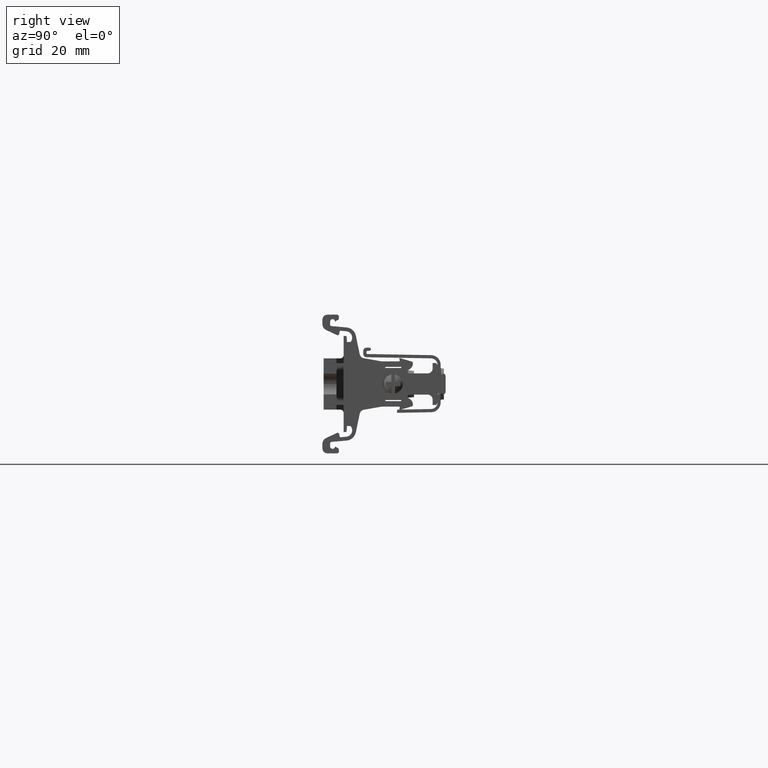
[diagram: clean part render]
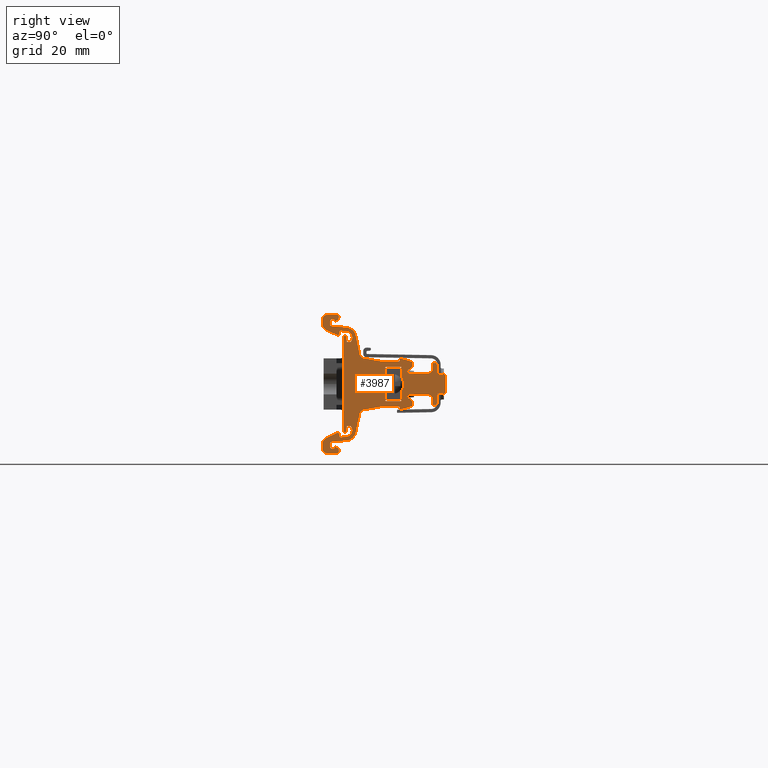
[diagram: same view with one face highlighted and labeled with its STEP entity id]
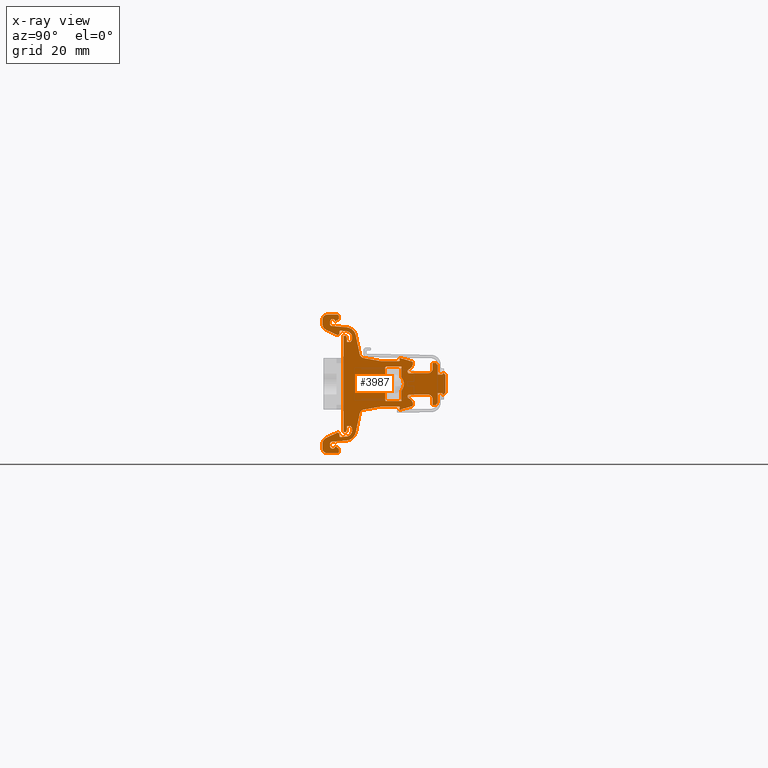
[diagram: x-ray of the same camera — body ghosted, the highlighted face saturated]
A machine part, right view. The second image highlights one B-rep face of the part: STEP entity #3987.
The next image is the same camera in x-ray: the body ghosted, the highlighted face saturated — about 0% of this face is hidden behind the body in this view.
In plain terms, the highlighted planar face has unit normal (-1, 0, -0).
Its self-contained STEP definition (entity closure, byte-faithful):
#72 = VERTEX_POINT ( 'NONE', #3906 ) ;
#77 = VERTEX_POINT ( 'NONE', #32385 ) ;
#83 = CARTESIAN_POINT ( 'NONE',  ( 45.04730230417580117, 39.76328441857295104, 43.87217171682194561 ) ) ;
#111 = CARTESIAN_POINT ( 'NONE',  ( 45.04730230417590064, 55.87540409741220060, 45.11625012411799673 ) ) ;
#144 = ORIENTED_EDGE ( 'NONE', *, *, #31632, .T. ) ;
#202 = DIRECTION ( 'NONE',  ( 1.000000000000000000, 6.080468963914279164E-22, 3.511192837615215549E-15 ) ) ;
#218 = AXIS2_PLACEMENT_3D ( 'NONE', #27114, #30067, #8019 ) ;
#284 = EDGE_CURVE ( 'NONE', #5001, #39572, #1288, .T. ) ;
#307 = DIRECTION ( 'NONE',  ( 0.0000000000000000000, -1.000000000000000000, 0.0000000000000000000 ) ) ;
#308 = CARTESIAN_POINT ( 'NONE',  ( 45.04730230417609960, 64.41902670048010293, 34.76864998369349280 ) ) ;
#409 = EDGE_CURVE ( 'NONE', #16024, #14393, #4758, .T. ) ;
#419 = DIRECTION ( 'NONE',  ( -1.000000000000000000, 6.938893295860650037E-15, -3.511194039250415127E-15 ) ) ;
#516 = CARTESIAN_POINT ( 'NONE',  ( 45.04730230417600012, 65.03482648293329760, 44.61224998368954431 ) ) ;
#634 = CIRCLE ( 'NONE', #37148, 1.008000000000022656 ) ;
#702 = CARTESIAN_POINT ( 'NONE',  ( 45.04730230417609960, 65.03482648293329760, 16.47537229411330273 ) ) ;
#789 = CARTESIAN_POINT ( 'NONE',  ( 45.04730230417580117, 43.05277200151720507, 54.66530018249689959 ) ) ;
#827 = VECTOR ( 'NONE', #21131, 1000.000000000000000 ) ;
#884 = CARTESIAN_POINT ( 'NONE',  ( 45.04730230417609960, 70.18882648293229920, 33.25664998369444447 ) ) ;
#896 = EDGE_CURVE ( 'NONE', #19869, #31832, #5738, .T. ) ;
#946 = VECTOR ( 'NONE', #7396, 1000.000000000000114 ) ;
#953 = ORIENTED_EDGE ( 'NONE', *, *, #3562, .T. ) ;
#961 = CARTESIAN_POINT ( 'NONE',  ( 45.04730230417600012, 61.14930040515500309, 45.41624998369039901 ) ) ;
#989 = ORIENTED_EDGE ( 'NONE', *, *, #6848, .T. ) ;
#1048 = CIRCLE ( 'NONE', #15569, 0.7589999999999957891 ) ;
#1083 = LINE ( 'NONE', #37484, #25640 ) ;
#1114 = CARTESIAN_POINT ( 'NONE',  ( 45.04730230417590064, 47.79345559758269957, 53.09064989785720456 ) ) ;
#1241 = CARTESIAN_POINT ( 'NONE',  ( 45.04730230417590064, 44.64504681959524390, 23.63694516486119923 ) ) ;
#1288 = CIRCLE ( 'NONE', #2455, 0.2999999999999461431 ) ;
#1345 = VERTEX_POINT ( 'NONE', #38035 ) ;
#1392 = CIRCLE ( 'NONE', #10869, 2.000000000000050182 ) ;
#1415 = CARTESIAN_POINT ( 'NONE',  ( 45.04730230417590064, 42.49563694983474704, 17.63144197736650298 ) ) ;
#1440 = EDGE_CURVE ( 'NONE', #39572, #34805, #35829, .T. ) ;
#1520 = CARTESIAN_POINT ( 'NONE',  ( 45.04730230417590064, 40.21966716099024808, 20.03755198441054830 ) ) ;
#1605 = VECTOR ( 'NONE', #35385, 1000.000000000000000 ) ;
#1658 = DIRECTION ( 'NONE',  ( 0.0000000000000000000, -1.000000000000000000, 0.0000000000000000000 ) ) ;
#1713 = ORIENTED_EDGE ( 'NONE', *, *, #10395, .T. ) ;
#1803 = ORIENTED_EDGE ( 'NONE', *, *, #5934, .T. ) ;
#1893 = CIRCLE ( 'NONE', #35974, 0.5000000000001605382 ) ;
#1927 = EDGE_CURVE ( 'NONE', #2204, #29893, #16666, .T. ) ;
#1975 = VECTOR ( 'NONE', #14420, 999.9999999999998863 ) ;
#1992 = CARTESIAN_POINT ( 'NONE',  ( 45.04730230417600012, 64.41902670048010293, 41.38664998368980008 ) ) ;
#2033 = ORIENTED_EDGE ( 'NONE', *, *, #30717, .T. ) ;
#2034 = EDGE_CURVE ( 'NONE', #31565, #25525, #2169, .T. ) ;
#2035 = AXIS2_PLACEMENT_3D ( 'NONE', #24827, #28299, #37618 ) ;
#2070 = DIRECTION ( 'NONE',  ( -1.000000000000000000, 1.387778780781444098E-14, -3.511194208363125255E-15 ) ) ;
#2131 = VERTEX_POINT ( 'NONE', #7195 ) ;
#2169 = LINE ( 'NONE', #6233, #40311 ) ;
#2204 = VERTEX_POINT ( 'NONE', #10563 ) ;
#2283 = DIRECTION ( 'NONE',  ( 1.387778780781442836E-14, 0.9999999999999850120, -1.731738780152976998E-07 ) ) ;
#2321 = ORIENTED_EDGE ( 'NONE', *, *, #18195, .F. ) ;
#2338 = LINE ( 'NONE', #3156, #8347 ) ;
#2356 = ORIENTED_EDGE ( 'NONE', *, *, #31636, .T. ) ;
#2381 = ORIENTED_EDGE ( 'NONE', *, *, #5960, .F. ) ;
#2420 = LINE ( 'NONE', #30863, #29000 ) ;
#2425 = ORIENTED_EDGE ( 'NONE', *, *, #11388, .T. ) ;
#2455 = AXIS2_PLACEMENT_3D ( 'NONE', #14419, #17615, #1658 ) ;
#2475 = ORIENTED_EDGE ( 'NONE', *, *, #6997, .T. ) ;
#2502 = CARTESIAN_POINT ( 'NONE',  ( 45.04730230417609960, 73.21282648293259854, 43.93826644650415147 ) ) ;
#2561 = LINE ( 'NONE', #14892, #8036 ) ;
#2578 = EDGE_CURVE ( 'NONE', #3090, #32341, #3076, .T. ) ;
#2637 = LINE ( 'NONE', #39216, #26681 ) ;
#2719 = EDGE_CURVE ( 'NONE', #34805, #33626, #14626, .T. ) ;
#2767 = VECTOR ( 'NONE', #32361, 1000.000000000000000 ) ;
#2780 = DIRECTION ( 'NONE',  ( -1.000000000000000000, 1.387778841585714128E-14, -3.511193175840455551E-15 ) ) ;
#2824 = EDGE_CURVE ( 'NONE', #4074, #37788, #36225, .T. ) ;
#2871 = DIRECTION ( 'NONE',  ( -1.698165312667435330E-15, -0.08716743514127640868, 0.9961936750707121035 ) ) ;
#2885 = EDGE_CURVE ( 'NONE', #16339, #41564, #6577, .T. ) ;
#2917 = ORIENTED_EDGE ( 'NONE', *, *, #32453, .T. ) ;
#2922 = LINE ( 'NONE', #789, #11942 ) ;
#2929 = LINE ( 'NONE', #17040, #38091 ) ;
#2943 = EDGE_CURVE ( 'NONE', #40101, #13014, #21605, .T. ) ;
#2971 = CARTESIAN_POINT ( 'NONE',  ( 45.04730230417609960, 71.70082648293229965, 31.54304998368995427 ) ) ;
#3053 = AXIS2_PLACEMENT_3D ( 'NONE', #18747, #2780, #41641 ) ;
#3057 = EDGE_CURVE ( 'NONE', #34031, #31977, #38735, .T. ) ;
#3076 = CIRCLE ( 'NONE', #34715, 3.308999999999034713 ) ;
#3078 = CIRCLE ( 'NONE', #24823, 3.308999999999034713 ) ;
#3090 = VERTEX_POINT ( 'NONE', #20060 ) ;
#3103 = CARTESIAN_POINT ( 'NONE',  ( 45.04730230417600012, 49.02563120575550215, 28.94034795427729989 ) ) ;
#3129 = CARTESIAN_POINT ( 'NONE',  ( 45.04730230417590064, 39.76324211793895103, 18.62470185362465003 ) ) ;
#3156 = CARTESIAN_POINT ( 'NONE',  ( 45.04730230417609960, 75.74178047623560417, 40.55278486981335107 ) ) ;
#3167 = LINE ( 'NONE', #17087, #30765 ) ;
#3261 = ORIENTED_EDGE ( 'NONE', *, *, #22048, .F. ) ;
#3293 = VERTEX_POINT ( 'NONE', #15503 ) ;
#3322 = CARTESIAN_POINT ( 'NONE',  ( 45.04730230417580117, 44.64504681959524390, 52.51835480252209720 ) ) ;
#3335 = ORIENTED_EDGE ( 'NONE', *, *, #35175, .F. ) ;
#3338 = AXIS2_PLACEMENT_3D ( 'NONE', #30884, #4939, #15003 ) ;
#3368 = DIRECTION ( 'NONE',  ( 1.000000000000000000, 0.0000000000000000000, 3.511194208363125255E-15 ) ) ;
#3384 = CARTESIAN_POINT ( 'NONE',  ( 45.04730230417600012, 65.03482648293329760, 51.17200985974320560 ) ) ;
#3410 = CIRCLE ( 'NONE', #18917, 1.511999999999999567 ) ;
#3441 = DIRECTION ( 'NONE',  ( 7.909228227635313371E-15, 0.9961947123350202160, 0.08715557994613090664 ) ) ;
#3562 = EDGE_CURVE ( 'NONE', #37958, #29603, #33132, .T. ) ;
#3578 = ORIENTED_EDGE ( 'NONE', *, *, #896, .T. ) ;
#3608 = DIRECTION ( 'NONE',  ( 6.938893903907648052E-15, 0.9999999999999850120, -1.731738814847554779E-07 ) ) ;
#3664 = PLANE ( 'NONE',  #17814 ) ;
#3755 = CARTESIAN_POINT ( 'NONE',  ( 45.04730230417600012, 56.81263063100299604, 36.03872277032984783 ) ) ;
#3794 = CARTESIAN_POINT ( 'NONE',  ( 45.04730230417590064, 49.02563120575550215, 47.21495201310600009 ) ) ;
#3906 = CARTESIAN_POINT ( 'NONE',  ( 45.04730230417609960, 65.53882648293330249, 31.54304998369335422 ) ) ;
#3918 = LINE ( 'NONE', #33671, #39109 ) ;
#3938 = LINE ( 'NONE', #37997, #39616 ) ;
#3960 = CARTESIAN_POINT ( 'NONE',  ( 45.04730230417609960, 74.98278047623560383, 40.55278486981335107 ) ) ;
#3962 = VECTOR ( 'NONE', #17595, 1000.000000000000000 ) ;
#3969 = CARTESIAN_POINT ( 'NONE',  ( 45.04730230417609960, 73.21189314966319728, 32.21547733648735345 ) ) ;
#3987 = ADVANCED_FACE ( 'NONE', ( #9512, #36627 ), #3664, .F. ) ;
#4015 = CARTESIAN_POINT ( 'NONE',  ( 45.04730230417609960, 70.18882648293229920, 42.89864998368875604 ) ) ;
#4031 = VERTEX_POINT ( 'NONE', #1415 ) ;
#4074 = VERTEX_POINT ( 'NONE', #30544 ) ;
#4102 = LINE ( 'NONE', #40329, #37266 ) ;
#4155 = ORIENTED_EDGE ( 'NONE', *, *, #22663, .T. ) ;
#4170 = LINE ( 'NONE', #24873, #14207 ) ;
#4174 = CARTESIAN_POINT ( 'NONE',  ( 45.04730230417619907, 73.21282648293269801, 14.80179621560654013 ) ) ;
#4257 = CIRCLE ( 'NONE', #29477, 3.199999923352062847 ) ;
#4289 = EDGE_CURVE ( 'NONE', #19770, #22263, #34055, .T. ) ;
#4315 = CARTESIAN_POINT ( 'NONE',  ( 45.04730230417609960, 72.81491734236399793, 44.60171648553019708 ) ) ;
#4357 = EDGE_CURVE ( 'NONE', #14393, #37958, #29011, .T. ) ;
#4381 = DIRECTION ( 'NONE',  ( 4.036443564285347951E-15, -0.1736481776669389354, -0.9848077530122064660 ) ) ;
#4502 = DIRECTION ( 'NONE',  ( -4.461775849259800428E-15, 1.731736892445320024E-07, 0.9999999999999850120 ) ) ;
#4580 = CARTESIAN_POINT ( 'NONE',  ( 45.04730230417600012, 61.56727615041429402, 46.12424998368979345 ) ) ;
#4623 = CARTESIAN_POINT ( 'NONE',  ( 45.04730230417600012, 56.41882648293279345, 40.42466532237265397 ) ) ;
#4664 = CARTESIAN_POINT ( 'NONE',  ( 45.04730230417590064, 38.52068015480980279, 21.25285254921984901 ) ) ;
#4667 = CARTESIAN_POINT ( 'NONE',  ( 45.04730230417609960, 71.70082648293229965, 44.61224998369330308 ) ) ;
#4758 = CIRCLE ( 'NONE', #14796, 1.500000000000001332 ) ;
#4767 = ORIENTED_EDGE ( 'NONE', *, *, #28975, .F. ) ;
#4780 = CARTESIAN_POINT ( 'NONE',  ( 45.04730230417600012, 62.65701656017640175, 43.40264998369015359 ) ) ;
#4823 = VERTEX_POINT ( 'NONE', #23302 ) ;
#4849 = CARTESIAN_POINT ( 'NONE',  ( 45.04730230417590064, 44.81935797948735001, 21.64455574019099870 ) ) ;
#4861 = EDGE_CURVE ( 'NONE', #38075, #34630, #9413, .T. ) ;
#4872 = ORIENTED_EDGE ( 'NONE', *, *, #25360, .F. ) ;
#4882 = CARTESIAN_POINT ( 'NONE',  ( 45.04730230417580117, 44.97751323073705265, 51.17200985974320560 ) ) ;
#4916 = LINE ( 'NONE', #14060, #25473 ) ;
#4939 = DIRECTION ( 'NONE',  ( 1.000000000000000000, -1.376764663471030128E-14, 3.511194208363125255E-15 ) ) ;
#5001 = VERTEX_POINT ( 'NONE', #15664 ) ;
#5006 = VERTEX_POINT ( 'NONE', #41243 ) ;
#5012 = CARTESIAN_POINT ( 'NONE',  ( 45.04730230417580117, 40.52224083797164411, 57.53060022804039875 ) ) ;
#5019 = CARTESIAN_POINT ( 'NONE',  ( 45.04730230417600012, 61.34208246428669753, 30.10474022585210108 ) ) ;
#5028 = EDGE_CURVE ( 'NONE', #38601, #9790, #21957, .T. ) ;
#5226 = DIRECTION ( 'NONE',  ( 1.000000000000000000, -1.387778780781444098E-14, 3.511194208363125255E-15 ) ) ;
#5247 = LINE ( 'NONE', #702, #2767 ) ;
#5271 = EDGE_CURVE ( 'NONE', #9790, #29657, #25462, .T. ) ;
#5281 = VECTOR ( 'NONE', #16603, 1000.000000000000000 ) ;
#5287 = VERTEX_POINT ( 'NONE', #34563 ) ;
#5292 = EDGE_CURVE ( 'NONE', #77, #5001, #37039, .T. ) ;
#5340 = EDGE_CURVE ( 'NONE', #5769, #6302, #28432, .T. ) ;
#5346 = DIRECTION ( 'NONE',  ( 3.060780312257524908E-28, 1.938238520643950141E-14, 1.000000000000000000 ) ) ;
#5365 = DIRECTION ( 'NONE',  ( 8.673617587638691173E-15, 0.9999999999999850120, -1.731738806453589827E-07 ) ) ;
#5456 = EDGE_CURVE ( 'NONE', #23628, #27235, #1392, .T. ) ;
#5497 = VECTOR ( 'NONE', #38761, 1000.000000000000000 ) ;
#5546 = CIRCLE ( 'NONE', #33226, 0.5000000000000004441 ) ;
#5548 = DIRECTION ( 'NONE',  ( 1.353109665513949657E-15, -0.2508007137987739998, -0.9680387399056019637 ) ) ;
#5573 = CIRCLE ( 'NONE', #9085, 1.999201665742356138 ) ;
#5579 = DIRECTION ( 'NONE',  ( 8.595110051843501022E-15, 0.8660322215516831346, -0.4999881910948060781 ) ) ;
#5601 = EDGE_CURVE ( 'NONE', #10667, #7670, #20420, .T. ) ;
#5635 = DIRECTION ( 'NONE',  ( -1.000000000000000000, 6.883823317368130559E-15, -3.511194208363125255E-15 ) ) ;
#5738 = LINE ( 'NONE', #12674, #16742 ) ;
#5769 = VERTEX_POINT ( 'NONE', #36713 ) ;
#5861 = CARTESIAN_POINT ( 'NONE',  ( 45.04730230417580117, 44.64504681959524390, 52.51835480252209720 ) ) ;
#5927 = CARTESIAN_POINT ( 'NONE',  ( 45.04730230417590064, 48.88003733662709749, 47.85295847066389996 ) ) ;
#5934 = EDGE_CURVE ( 'NONE', #35826, #40916, #35500, .T. ) ;
#5960 = EDGE_CURVE ( 'NONE', #7670, #33259, #8851, .T. ) ;
#6016 = EDGE_CURVE ( 'NONE', #14758, #39751, #33962, .T. ) ;
#6125 = DIRECTION ( 'NONE',  ( 6.938893903906565734E-15, 0.9999999999999851230, 1.731738814847284523E-07 ) ) ;
#6196 = CARTESIAN_POINT ( 'NONE',  ( 45.04730230417600012, 63.91902670048020241, 42.08361953261960053 ) ) ;
#6233 = CARTESIAN_POINT ( 'NONE',  ( 45.04730230417590064, 43.96882648293765072, 31.57865108636465123 ) ) ;
#6244 = CARTESIAN_POINT ( 'NONE',  ( 45.04730230417580117, 38.86598570617709925, 58.17992767326989423 ) ) ;
#6302 = VERTEX_POINT ( 'NONE', #7751 ) ;
#6393 = DIRECTION ( 'NONE',  ( -9.142168123262904179E-15, -1.000000000000000000, 0.0000000000000000000 ) ) ;
#6404 = ORIENTED_EDGE ( 'NONE', *, *, #23462, .F. ) ;
#6413 = VECTOR ( 'NONE', #9934, 1000.000000000000000 ) ;
#6548 = CARTESIAN_POINT ( 'NONE',  ( 45.04730230417600012, 48.88003733662709749, 28.30234149671985122 ) ) ;
#6577 = LINE ( 'NONE', #31057, #16583 ) ;
#6645 = CARTESIAN_POINT ( 'NONE',  ( 45.04730230417590064, 43.96882648293760099, 29.07865108636485019 ) ) ;
#6680 = CARTESIAN_POINT ( 'NONE',  ( 45.04730230417580117, 42.60328566554649399, 53.69303677530010077 ) ) ;
#6694 = AXIS2_PLACEMENT_3D ( 'NONE', #4015, #7373, #9914 ) ;
#6708 = ORIENTED_EDGE ( 'NONE', *, *, #4289, .F. ) ;
#6750 = CIRCLE ( 'NONE', #11672, 1.500000000000056843 ) ;
#6753 = AXIS2_PLACEMENT_3D ( 'NONE', #11546, #5226, #24291 ) ;
#6806 = CARTESIAN_POINT ( 'NONE',  ( 45.04730230417590064, 43.05277200151720507, 21.48999978488635421 ) ) ;
#6848 = EDGE_CURVE ( 'NONE', #29893, #25943, #33148, .T. ) ;
#6962 = DIRECTION ( 'NONE',  ( 1.387778780781000127E-14, 0.9999999999999851230, -1.731738780152424309E-07 ) ) ;
#6997 = EDGE_CURVE ( 'NONE', #35700, #32002, #5546, .T. ) ;
#7102 = ORIENTED_EDGE ( 'NONE', *, *, #36645, .T. ) ;
#7111 = DIRECTION ( 'NONE',  ( -3.511194208363125255E-15, 9.328066904212699892E-30, 1.000000000000000000 ) ) ;
#7168 = VECTOR ( 'NONE', #15735, 1000.000000000000000 ) ;
#7195 = CARTESIAN_POINT ( 'NONE',  ( 45.04730230417609960, 74.83098047623559523, 41.01244998369160299 ) ) ;
#7210 = LINE ( 'NONE', #31833, #8195 ) ;
#7292 = VECTOR ( 'NONE', #36193, 1000.000000000000000 ) ;
#7346 = LINE ( 'NONE', #21651, #10863 ) ;
#7366 = CARTESIAN_POINT ( 'NONE',  ( 45.04730230417609960, 75.30354029322739962, 41.24067595116520124 ) ) ;
#7373 = DIRECTION ( 'NONE',  ( 1.000000000000000000, -9.178431089824380761E-15, 3.511194208363125255E-15 ) ) ;
#7396 = DIRECTION ( 'NONE',  ( -3.511226112384350598E-15, -4.039727375448119747E-06, 0.9999999999918401938 ) ) ;
#7401 = CARTESIAN_POINT ( 'NONE',  ( 45.04730230417590064, 44.64504681959524390, 23.63694516486119923 ) ) ;
#7519 = EDGE_LOOP ( 'NONE', ( #12470, #20387, #10269, #25307, #10031, #32095, #12767, #39806, #29212, #22135, #10354, #10115, #35832, #39204, #15727 ) ) ;
#7554 = ORIENTED_EDGE ( 'NONE', *, *, #35659, .F. ) ;
#7640 = CARTESIAN_POINT ( 'NONE',  ( 45.04730230417609960, 75.03338047623560669, 41.36664998369160173 ) ) ;
#7645 = LINE ( 'NONE', #11995, #22722 ) ;
#7670 = VERTEX_POINT ( 'NONE', #8414 ) ;
#7716 = VERTEX_POINT ( 'NONE', #31291 ) ;
#7751 = CARTESIAN_POINT ( 'NONE',  ( 45.04730230417580117, 44.87820380573344892, 52.99986615940360224 ) ) ;
#7886 = AXIS2_PLACEMENT_3D ( 'NONE', #3960, #19503, #32297 ) ;
#7893 = AXIS2_PLACEMENT_3D ( 'NONE', #7401, #31237, #26440 ) ;
#7926 = DIRECTION ( 'NONE',  ( -1.521712686171329979E-27, -9.631644151525070094E-14, 1.000000000000000000 ) ) ;
#7980 = VERTEX_POINT ( 'NONE', #28351 ) ;
#7997 = LINE ( 'NONE', #40609, #41190 ) ;
#8003 = DIRECTION ( 'NONE',  ( 8.938535444814240931E-15, 1.000000000000000000, 7.310028659936728794E-30 ) ) ;
#8019 = DIRECTION ( 'NONE',  ( -1.387778780781405917E-14, -1.000000000000000000, 0.0000000000000000000 ) ) ;
#8036 = VECTOR ( 'NONE', #34400, 1000.000000000000000 ) ;
#8046 = DIRECTION ( 'NONE',  ( -1.000000000000000000, 6.080473711468669767E-22, -3.511195579110825518E-15 ) ) ;
#8150 = CARTESIAN_POINT ( 'NONE',  ( 45.04730230417580117, 42.49563694983474704, 58.52385799001679345 ) ) ;
#8170 = VERTEX_POINT ( 'NONE', #21581 ) ;
#8178 = DIRECTION ( 'NONE',  ( 1.579514997436685028E-14, 1.000000000000000000, 3.041935700370215021E-31 ) ) ;
#8195 = VECTOR ( 'NONE', #32238, 1000.000000000000114 ) ;
#8347 = VECTOR ( 'NONE', #32187, 1000.000000000000000 ) ;
#8389 = EDGE_CURVE ( 'NONE', #25378, #35826, #20453, .T. ) ;
#8398 = DIRECTION ( 'NONE',  ( 7.977185368120338331E-15, 0.9062916780557624952, -0.4226528058428927759 ) ) ;
#8414 = CARTESIAN_POINT ( 'NONE',  ( 45.04730230417590064, 42.60328566554649399, 22.46226319208314948 ) ) ;
#8521 = AXIS2_PLACEMENT_3D ( 'NONE', #5861, #31662, #6125 ) ;
#8528 = EDGE_CURVE ( 'NONE', #35700, #21371, #3938, .T. ) ;
#8559 = CARTESIAN_POINT ( 'NONE',  ( 45.04730230417600012, 61.91882648292980207, 32.75264998369294744 ) ) ;
#8571 = ORIENTED_EDGE ( 'NONE', *, *, #2824, .T. ) ;
#8585 = AXIS2_PLACEMENT_3D ( 'NONE', #9843, #202, #13509 ) ;
#8604 = EDGE_CURVE ( 'NONE', #26684, #31466, #31014, .T. ) ;
#8640 = ORIENTED_EDGE ( 'NONE', *, *, #8604, .F. ) ;
#8659 = CARTESIAN_POINT ( 'NONE',  ( 45.04730230417609960, 73.21282648293249906, 34.53814187050549833 ) ) ;
#8663 = EDGE_CURVE ( 'NONE', #17024, #38374, #2929, .T. ) ;
#8665 = LINE ( 'NONE', #23063, #20182 ) ;
#8701 = LINE ( 'NONE', #14718, #40882 ) ;
#8764 = VECTOR ( 'NONE', #8003, 1000.000000000000000 ) ;
#8828 = VERTEX_POINT ( 'NONE', #9313 ) ;
#8851 = LINE ( 'NONE', #41059, #30423 ) ;
#8874 = VERTEX_POINT ( 'NONE', #6645 ) ;
#8971 = CARTESIAN_POINT ( 'NONE',  ( 45.04730230417580117, 37.36598570617709925, 17.97537235587640225 ) ) ;
#8986 = DIRECTION ( 'NONE',  ( 7.022388416726560532E-15, 1.938238520643945092E-14, -1.000000000000000000 ) ) ;
#9031 = CARTESIAN_POINT ( 'NONE',  ( 45.04730230417580117, 41.98963583581465286, 59.17392918536479840 ) ) ;
#9054 = CARTESIAN_POINT ( 'NONE',  ( 45.04730230417600012, 57.91882648293259450, 34.76864998369224224 ) ) ;
#9066 = ORIENTED_EDGE ( 'NONE', *, *, #14788, .F. ) ;
#9067 = VECTOR ( 'NONE', #19120, 1000.000000000000114 ) ;
#9085 = AXIS2_PLACEMENT_3D ( 'NONE', #34775, #28004, #25222 ) ;
#9169 = CARTESIAN_POINT ( 'NONE',  ( 45.04730230417609960, 63.91902670048020241, 34.26864998369335069 ) ) ;
#9187 = CARTESIAN_POINT ( 'NONE',  ( 45.04730230417609960, 74.83098047623559523, 41.36664998369160173 ) ) ;
#9251 = DIRECTION ( 'NONE',  ( 1.000000000000000000, -8.387904386714121069E-15, 3.511194208363125255E-15 ) ) ;
#9261 = CARTESIAN_POINT ( 'NONE',  ( 45.04730230417590064, 41.98963799605405001, 17.63144381072060085 ) ) ;
#9263 = CARTESIAN_POINT ( 'NONE',  ( 45.04730230417590064, 42.11087856375115024, 22.37545739676114920 ) ) ;
#9296 = CARTESIAN_POINT ( 'NONE',  ( 45.04730230417590064, 39.76324495096575617, 19.53945617676095026 ) ) ;
#9313 = CARTESIAN_POINT ( 'NONE',  ( 45.04730230417600012, 61.85484722747539621, 30.11369078437520130 ) ) ;
#9324 = DIRECTION ( 'NONE',  ( 7.218841498628249870E-15, 1.000000000000000000, -4.766330188074030606E-30 ) ) ;
#9363 = LINE ( 'NONE', #6806, #19367 ) ;
#9388 = AXIS2_PLACEMENT_3D ( 'NONE', #15174, #28074, #37276 ) ;
#9413 = LINE ( 'NONE', #14579, #27469 ) ;
#9419 = ORIENTED_EDGE ( 'NONE', *, *, #28910, .F. ) ;
#9444 = CARTESIAN_POINT ( 'NONE',  ( 45.04730230417609960, 71.70082648293229965, 42.89864998368875604 ) ) ;
#9512 = FACE_OUTER_BOUND ( 'NONE', #34393, .T. ) ;
#9521 = EDGE_CURVE ( 'NONE', #25525, #10464, #7346, .T. ) ;
#9523 = CIRCLE ( 'NONE', #33351, 0.5000000000000004441 ) ;
#9572 = EDGE_CURVE ( 'NONE', #27198, #39208, #2338, .T. ) ;
#9790 = VERTEX_POINT ( 'NONE', #3103 ) ;
#9843 = CARTESIAN_POINT ( 'NONE',  ( 45.04730230417590064, 43.02662532753384994, 21.78885819858734862 ) ) ;
#9853 = ORIENTED_EDGE ( 'NONE', *, *, #16462, .T. ) ;
#9893 = EDGE_CURVE ( 'NONE', #20436, #31282, #35446, .T. ) ;
#9914 = DIRECTION ( 'NONE',  ( -9.178431089824379183E-15, -1.000000000000000000, 0.0000000000000000000 ) ) ;
#9927 = DIRECTION ( 'NONE',  ( -3.511194208363199802E-15, -9.563626449541390395E-15, 1.000000000000000000 ) ) ;
#9934 = DIRECTION ( 'NONE',  ( 3.963074673869540896E-15, -6.229316526334730444E-29, -1.000000000000000000 ) ) ;
#10031 = ORIENTED_EDGE ( 'NONE', *, *, #284, .T. ) ;
#10060 = VERTEX_POINT ( 'NONE', #18980 ) ;
#10070 = ORIENTED_EDGE ( 'NONE', *, *, #21423, .T. ) ;
#10106 = CARTESIAN_POINT ( 'NONE',  ( 45.04730230417600012, 65.03482648293329760, 44.61224998368954431 ) ) ;
#10115 = ORIENTED_EDGE ( 'NONE', *, *, #35747, .F. ) ;
#10185 = CARTESIAN_POINT ( 'NONE',  ( 45.04730230417580117, 43.05277200151720507, 54.66530018249689959 ) ) ;
#10187 = ORIENTED_EDGE ( 'NONE', *, *, #34664, .F. ) ;
#10210 = CARTESIAN_POINT ( 'NONE',  ( 45.04730230417609960, 72.71282648293230011, 31.54304998368995427 ) ) ;
#10221 = CARTESIAN_POINT ( 'NONE',  ( 45.04730230417580117, 44.87820380573344892, 52.99986615940360224 ) ) ;
#10235 = LINE ( 'NONE', #10221, #36878 ) ;
#10242 = VERTEX_POINT ( 'NONE', #34097 ) ;
#10269 = ORIENTED_EDGE ( 'NONE', *, *, #17439, .T. ) ;
#10349 = CARTESIAN_POINT ( 'NONE',  ( 45.04730230417580117, 40.26324495096335454, 56.61584533914020056 ) ) ;
#10354 = ORIENTED_EDGE ( 'NONE', *, *, #15333, .F. ) ;
#10363 = VECTOR ( 'NONE', #17677, 1000.000000000000114 ) ;
#10368 = CARTESIAN_POINT ( 'NONE',  ( 45.04730230417600012, 64.41902670048020241, 42.08361953261960053 ) ) ;
#10374 = AXIS2_PLACEMENT_3D ( 'NONE', #10349, #29553, #23129 ) ;
#10395 = EDGE_CURVE ( 'NONE', #17716, #7716, #23852, .T. ) ;
#10456 = DIRECTION ( 'NONE',  ( 9.251858538542620390E-15, 1.000000000000000000, 0.0000000000000000000 ) ) ;
#10464 = VERTEX_POINT ( 'NONE', #20516 ) ;
#10528 = LINE ( 'NONE', #20417, #1975 ) ;
#10554 = ORIENTED_EDGE ( 'NONE', *, *, #9893, .F. ) ;
#10563 = CARTESIAN_POINT ( 'NONE',  ( 45.04730230417580117, 44.92394467542255398, 55.70617780505340022 ) ) ;
#10599 = ORIENTED_EDGE ( 'NONE', *, *, #38241, .F. ) ;
#10667 = VERTEX_POINT ( 'NONE', #37310 ) ;
#10672 = VECTOR ( 'NONE', #33598, 1000.000000000000000 ) ;
#10701 = EDGE_CURVE ( 'NONE', #4823, #3293, #26803, .T. ) ;
#10738 = CARTESIAN_POINT ( 'NONE',  ( 45.04730230417580117, 50.47768931561410000, 47.59115308380410170 ) ) ;
#10790 = DIRECTION ( 'NONE',  ( 8.387904386714116336E-15, 1.000000000000000000, 0.0000000000000000000 ) ) ;
#10819 = VECTOR ( 'NONE', #39613, 1000.000000000000000 ) ;
#10863 = VECTOR ( 'NONE', #21511, 1000.000000000000000 ) ;
#10869 = AXIS2_PLACEMENT_3D ( 'NONE', #20350, #33133, #23742 ) ;
#11031 = DIRECTION ( 'NONE',  ( -1.000000000000000000, 1.371327003883342033E-14, -3.511194208363125255E-15 ) ) ;
#11079 = CARTESIAN_POINT ( 'NONE',  ( 45.04730230417590064, 59.41882648293089630, 38.07764998369160736 ) ) ;
#11176 = CIRCLE ( 'NONE', #40975, 3.199999923352062847 ) ;
#11178 = CARTESIAN_POINT ( 'NONE',  ( 45.04730230417580117, 44.92394467542255398, 55.70617780505340022 ) ) ;
#11291 = LINE ( 'NONE', #31915, #21811 ) ;
#11313 = VECTOR ( 'NONE', #31500, 1000.000000000000000 ) ;
#11388 = EDGE_CURVE ( 'NONE', #29603, #41471, #8701, .T. ) ;
#11390 = VECTOR ( 'NONE', #7926, 1000.000000000000000 ) ;
#11541 = EDGE_CURVE ( 'NONE', #30301, #29462, #17713, .T. ) ;
#11546 = CARTESIAN_POINT ( 'NONE',  ( 45.04730230417609960, 64.41902670048020241, 34.26864998369335069 ) ) ;
#11672 = AXIS2_PLACEMENT_3D ( 'NONE', #10738, #39688, #10456 ) ;
#11678 = CARTESIAN_POINT ( 'NONE',  ( 45.04730230417590064, 44.96882679718270026, 24.89049483105264926 ) ) ;
#11692 = CARTESIAN_POINT ( 'NONE',  ( 45.04730230417609960, 75.30354029322739962, 34.91462401621804901 ) ) ;
#11762 = CARTESIAN_POINT ( 'NONE',  ( 45.04730230417600012, 53.18256331680350257, 11.75368152460474036 ) ) ;
#11911 = CARTESIAN_POINT ( 'NONE',  ( 45.04730230417600012, 62.02502233485950001, 40.11657719705280556 ) ) ;
#11942 = VECTOR ( 'NONE', #16981, 1000.000000000000000 ) ;
#11986 = CARTESIAN_POINT ( 'NONE',  ( 45.04730230417580117, 39.36598576649470260, 56.71503077427509965 ) ) ;
#11995 = CARTESIAN_POINT ( 'NONE',  ( 45.04730230417609960, 73.21282648293259854, 35.14284998369165436 ) ) ;
#11999 = CARTESIAN_POINT ( 'NONE',  ( 45.04730230417600012, 62.65701656017640175, 32.75264998369305403 ) ) ;
#12017 = VERTEX_POINT ( 'NONE', #7366 ) ;
#12023 = VERTEX_POINT ( 'NONE', #20106 ) ;
#12093 = DIRECTION ( 'NONE',  ( -4.173525295009945816E-15, 0.1736115906440594825, 0.9848142035907279102 ) ) ;
#12192 = EDGE_CURVE ( 'NONE', #2131, #8170, #40836, .T. ) ;
#12209 = CARTESIAN_POINT ( 'NONE',  ( 45.04730230417600012, 50.47768931561410000, 28.56414688357914855 ) ) ;
#12303 = AXIS2_PLACEMENT_3D ( 'NONE', #21587, #5635, #28176 ) ;
#12358 = LINE ( 'NONE', #4315, #7292 ) ;
#12382 = VERTEX_POINT ( 'NONE', #16850 ) ;
#12383 = CARTESIAN_POINT ( 'NONE',  ( 45.04730230417580117, 42.60328566554649399, 53.69303677530010077 ) ) ;
#12392 = LINE ( 'NONE', #83, #19863 ) ;
#12431 = DIRECTION ( 'NONE',  ( -3.285485387912950253E-15, -3.565104669547925345E-30, 1.000000000000000000 ) ) ;
#12442 = EDGE_CURVE ( 'NONE', #13259, #19770, #2637, .T. ) ;
#12451 = DIRECTION ( 'NONE',  ( 8.402104383550488396E-15, 0.9999999999999996669, -2.493654252407339267E-08 ) ) ;
#12470 = ORIENTED_EDGE ( 'NONE', *, *, #2578, .F. ) ;
#12505 = ORIENTED_EDGE ( 'NONE', *, *, #2943, .T. ) ;
#12541 = VECTOR ( 'NONE', #33252, 1000.000000000000000 ) ;
#12554 = DIRECTION ( 'NONE',  ( 6.938893903907648052E-15, 0.9999999999999850120, 1.731738814847554779E-07 ) ) ;
#12585 = DIRECTION ( 'NONE',  ( 1.000000000000000000, -9.142168123262901024E-15, 3.511194208363125255E-15 ) ) ;
#12613 = EDGE_CURVE ( 'NONE', #36142, #2204, #11176, .T. ) ;
#12624 = DIRECTION ( 'NONE',  ( 9.251858538542620390E-15, 1.000000000000000000, 0.0000000000000000000 ) ) ;
#12636 = ORIENTED_EDGE ( 'NONE', *, *, #5028, .F. ) ;
#12674 = CARTESIAN_POINT ( 'NONE',  ( 45.04730230417590064, 55.87540409741220060, 31.03904984326529970 ) ) ;
#12691 = EDGE_CURVE ( 'NONE', #19977, #19166, #21646, .T. ) ;
#12722 = VERTEX_POINT ( 'NONE', #4849 ) ;
#12765 = LINE ( 'NONE', #4174, #27282 ) ;
#12767 = ORIENTED_EDGE ( 'NONE', *, *, #2719, .T. ) ;
#12786 = ORIENTED_EDGE ( 'NONE', *, *, #32013, .F. ) ;
#12788 = ORIENTED_EDGE ( 'NONE', *, *, #26583, .T. ) ;
#12887 = LINE ( 'NONE', #26467, #11390 ) ;
#12963 = CARTESIAN_POINT ( 'NONE',  ( 45.04730230417600012, 65.03482648293329760, 59.67992767327000081 ) ) ;
#12972 = AXIS2_PLACEMENT_3D ( 'NONE', #10368, #26352, #36198 ) ;
#12994 = ORIENTED_EDGE ( 'NONE', *, *, #34648, .F. ) ;
#13014 = VERTEX_POINT ( 'NONE', #32982 ) ;
#13105 = CARTESIAN_POINT ( 'NONE',  ( 45.04730230417600012, 61.56727615041429402, 30.03104998369339995 ) ) ;
#13126 = VECTOR ( 'NONE', #35432, 1000.000000000000000 ) ;
#13165 = EDGE_CURVE ( 'NONE', #24585, #33626, #3078, .T. ) ;
#13173 = VERTEX_POINT ( 'NONE', #36945 ) ;
#13230 = EDGE_CURVE ( 'NONE', #32341, #39213, #32178, .T. ) ;
#13259 = VERTEX_POINT ( 'NONE', #8971 ) ;
#13312 = CARTESIAN_POINT ( 'NONE',  ( 45.04730230417590064, 39.36598576649470260, 19.44026919310815060 ) ) ;
#13359 = DIRECTION ( 'NONE',  ( -3.511194208363125255E-15, 0.0000000000000000000, 1.000000000000000000 ) ) ;
#13408 = ORIENTED_EDGE ( 'NONE', *, *, #6016, .F. ) ;
#13437 = CARTESIAN_POINT ( 'NONE',  ( 45.04730230417600012, 61.91882648292980207, 35.73063464501144892 ) ) ;
#13480 = EDGE_CURVE ( 'NONE', #33774, #12017, #2561, .T. ) ;
#13509 = DIRECTION ( 'NONE',  ( 0.0000000000000000000, 0.9999999999999850120, -1.731738826410915850E-07 ) ) ;
#13537 = CARTESIAN_POINT ( 'NONE',  ( 45.04730230417580117, 50.21721697526500350, 46.11394146730729915 ) ) ;
#13556 = CARTESIAN_POINT ( 'NONE',  ( 45.04730230417600012, 50.15875241932339890, 30.03104961843470377 ) ) ;
#13610 = AXIS2_PLACEMENT_3D ( 'NONE', #1241, #30243, #36588 ) ;
#13708 = CARTESIAN_POINT ( 'NONE',  ( 45.04730230417590064, 45.46882679718270026, 24.89049474446569832 ) ) ;
#13731 = EDGE_CURVE ( 'NONE', #41471, #37795, #31128, .T. ) ;
#13775 = VERTEX_POINT ( 'NONE', #24063 ) ;
#13801 = ORIENTED_EDGE ( 'NONE', *, *, #29991, .T. ) ;
#13971 = CARTESIAN_POINT ( 'NONE',  ( 45.04730230417590064, 44.87820380573344892, 23.15543380797965156 ) ) ;
#14016 = ORIENTED_EDGE ( 'NONE', *, *, #20439, .T. ) ;
#14048 = VECTOR ( 'NONE', #12093, 999.9999999999998863 ) ;
#14060 = CARTESIAN_POINT ( 'NONE',  ( 45.04730230417609960, 73.21282648293259854, 43.93826644650415147 ) ) ;
#14132 = DIRECTION ( 'NONE',  ( 0.0000000000000000000, -1.000000000000000000, 0.0000000000000000000 ) ) ;
#14207 = VECTOR ( 'NONE', #24044, 1000.000000000000000 ) ;
#14231 = CARTESIAN_POINT ( 'NONE',  ( 45.04730230417600012, 65.37290098875220679, 43.62594112611604658 ) ) ;
#14266 = DIRECTION ( 'NONE',  ( -1.371327003883342822E-14, -1.000000000000000000, 0.0000000000000000000 ) ) ;
#14280 = EDGE_CURVE ( 'NONE', #36992, #12382, #39669, .T. ) ;
#14294 = ORIENTED_EDGE ( 'NONE', *, *, #30650, .F. ) ;
#14314 = CARTESIAN_POINT ( 'NONE',  ( 45.04730230417590064, 42.73118106645640069, 21.73677472139414846 ) ) ;
#14315 = CARTESIAN_POINT ( 'NONE',  ( 45.04730230417580117, 39.76324495096575617, 56.61584379062229999 ) ) ;
#14393 = VERTEX_POINT ( 'NONE', #16138 ) ;
#14419 = CARTESIAN_POINT ( 'NONE',  ( 45.04730230417600012, 57.21882648293269824, 33.05264998369214879 ) ) ;
#14420 = DIRECTION ( 'NONE',  ( 5.297493611965091330E-15, -0.08716743514127640868, -0.9961936750707121035 ) ) ;
#14444 = EDGE_CURVE ( 'NONE', #12023, #40480, #40186, .T. ) ;
#14465 = DIRECTION ( 'NONE',  ( 5.009153200072368493E-15, 0.9062916780557624952, 0.4226528058428927759 ) ) ;
#14489 = DIRECTION ( 'NONE',  ( -5.444834368541429090E-15, -0.2508007137987739998, 0.9680387399056019637 ) ) ;
#14544 = CIRCLE ( 'NONE', #2035, 2.000000000000050182 ) ;
#14553 = ORIENTED_EDGE ( 'NONE', *, *, #16833, .F. ) ;
#14579 = CARTESIAN_POINT ( 'NONE',  ( 45.04730230417600012, 61.32908888637920342, 46.12424998368979345 ) ) ;
#14626 = CIRCLE ( 'NONE', #31761, 0.5000000000000143219 ) ;
#14634 = LINE ( 'NONE', #9187, #16640 ) ;
#14652 = VERTEX_POINT ( 'NONE', #28073 ) ;
#14669 = ORIENTED_EDGE ( 'NONE', *, *, #23881, .F. ) ;
#14699 = VERTEX_POINT ( 'NONE', #28209 ) ;
#14718 = CARTESIAN_POINT ( 'NONE',  ( 45.04730230417580117, 38.52068015480980279, 54.90244741816339769 ) ) ;
#14748 = VERTEX_POINT ( 'NONE', #15733 ) ;
#14758 = VERTEX_POINT ( 'NONE', #15868 ) ;
#14788 = EDGE_CURVE ( 'NONE', #36142, #26779, #24023, .T. ) ;
#14796 = AXIS2_PLACEMENT_3D ( 'NONE', #6244, #16036, #22658 ) ;
#14892 = CARTESIAN_POINT ( 'NONE',  ( 45.04730230417609960, 75.03338047623560669, 41.36664998369160173 ) ) ;
#14932 = CIRCLE ( 'NONE', #16436, 0.5040000000009620118 ) ;
#14933 = DIRECTION ( 'NONE',  ( -1.387778780781444413E-14, -1.000000000000000000, 0.0000000000000000000 ) ) ;
#14952 = AXIS2_PLACEMENT_3D ( 'NONE', #9261, #41152, #18385 ) ;
#15003 = DIRECTION ( 'NONE',  ( -1.376764663471028551E-14, -1.000000000000000000, 0.0000000000000000000 ) ) ;
#15091 = EDGE_CURVE ( 'NONE', #23276, #31466, #14544, .T. ) ;
#15169 = ORIENTED_EDGE ( 'NONE', *, *, #9572, .F. ) ;
#15174 = CARTESIAN_POINT ( 'NONE',  ( 45.04730230417600012, 62.41882648292990154, 40.42466532237180132 ) ) ;
#15196 = ORIENTED_EDGE ( 'NONE', *, *, #29043, .T. ) ;
#15258 = ORIENTED_EDGE ( 'NONE', *, *, #32545, .F. ) ;
#15270 = ORIENTED_EDGE ( 'NONE', *, *, #30474, .F. ) ;
#15333 = EDGE_CURVE ( 'NONE', #23009, #32043, #24545, .T. ) ;
#15474 = VECTOR ( 'NONE', #41587, 1000.000000000000114 ) ;
#15503 = CARTESIAN_POINT ( 'NONE',  ( 45.04730230417609960, 72.81491734236399793, 44.60171648553019708 ) ) ;
#15569 = AXIS2_PLACEMENT_3D ( 'NONE', #16609, #29508, #36138 ) ;
#15650 = CIRCLE ( 'NONE', #12303, 1.008000000000022656 ) ;
#15664 = CARTESIAN_POINT ( 'NONE',  ( 45.04730230417600012, 57.21882648293269824, 32.75264998369215164 ) ) ;
#15727 = ORIENTED_EDGE ( 'NONE', *, *, #13230, .F. ) ;
#15733 = CARTESIAN_POINT ( 'NONE',  ( 45.04730230417590064, 43.05277200151720507, 21.48999978488635421 ) ) ;
#15735 = DIRECTION ( 'NONE',  ( -7.022388416726250510E-15, 5.545983911022379890E-29, 1.000000000000000000 ) ) ;
#15868 = CARTESIAN_POINT ( 'NONE',  ( 45.04730230417600012, 65.53882648293330249, 44.61224998368984274 ) ) ;
#15977 = CARTESIAN_POINT ( 'NONE',  ( 45.04730230417580117, 50.15875241932339890, 46.12425034894860687 ) ) ;
#16024 = VERTEX_POINT ( 'NONE', #36014 ) ;
#16027 = DIRECTION ( 'NONE',  ( -8.451876053015899757E-16, 0.5143428359353190427, 0.8575846588658250225 ) ) ;
#16036 = DIRECTION ( 'NONE',  ( 1.000000000000000000, -9.251858538542961178E-15, 3.511194208363125255E-15 ) ) ;
#16047 = CARTESIAN_POINT ( 'NONE',  ( 45.04730230417609960, 64.41902670048020241, 34.07168043476359998 ) ) ;
#16138 = CARTESIAN_POINT ( 'NONE',  ( 45.04730230417580117, 37.36598570617709925, 58.17992761150689773 ) ) ;
#16147 = EDGE_CURVE ( 'NONE', #3090, #27947, #38086, .T. ) ;
#16198 = DIRECTION ( 'NONE',  ( 1.000000000000000000, -8.673618195685930579E-15, 3.511194077066790153E-15 ) ) ;
#16231 = CIRCLE ( 'NONE', #9388, 0.5000000000000143219 ) ;
#16245 = VERTEX_POINT ( 'NONE', #37535 ) ;
#16339 = VERTEX_POINT ( 'NONE', #9296 ) ;
#16342 = ORIENTED_EDGE ( 'NONE', *, *, #8528, .F. ) ;
#16423 = CIRCLE ( 'NONE', #8521, 2.000000000000190958 ) ;
#16436 = AXIS2_PLACEMENT_3D ( 'NONE', #516, #16598, #26272 ) ;
#16457 = AXIS2_PLACEMENT_3D ( 'NONE', #27407, #11031, #14266 ) ;
#16462 = EDGE_CURVE ( 'NONE', #37788, #18658, #2922, .T. ) ;
#16463 = LINE ( 'NONE', #18946, #19944 ) ;
#16484 = DIRECTION ( 'NONE',  ( 1.387778780781405917E-14, 1.000000000000000000, 0.0000000000000000000 ) ) ;
#16518 = ORIENTED_EDGE ( 'NONE', *, *, #17761, .F. ) ;
#16583 = VECTOR ( 'NONE', #34284, 1000.000000000000000 ) ;
#16587 = EDGE_CURVE ( 'NONE', #18658, #5287, #16423, .T. ) ;
#16595 = CARTESIAN_POINT ( 'NONE',  ( 45.04730230417570169, 40.21966716099024808, 56.11774798297270195 ) ) ;
#16598 = DIRECTION ( 'NONE',  ( -1.000000000000000000, 1.376764663471030128E-14, -3.511194208363125255E-15 ) ) ;
#16603 = DIRECTION ( 'NONE',  ( 7.022388416724730375E-15, -9.631644151525080192E-14, -1.000000000000000000 ) ) ;
#16609 = CARTESIAN_POINT ( 'NONE',  ( 45.04730230417609960, 74.98278047623560383, 35.60251509756984944 ) ) ;
#16640 = VECTOR ( 'NONE', #37839, 1000.000000000000000 ) ;
#16666 = LINE ( 'NONE', #11178, #10672 ) ;
#16684 = DIRECTION ( 'NONE',  ( -1.000000000000000000, 9.178431089824380761E-15, -3.511194208363125255E-15 ) ) ;
#16742 = VECTOR ( 'NONE', #28049, 1000.000000000000114 ) ;
#16757 = EDGE_CURVE ( 'NONE', #39072, #29657, #33498, .T. ) ;
#16831 = CIRCLE ( 'NONE', #37087, 0.7589987200356460573 ) ;
#16833 = EDGE_CURVE ( 'NONE', #25298, #36992, #1893, .T. ) ;
#16837 = VERTEX_POINT ( 'NONE', #36157 ) ;
#16850 = CARTESIAN_POINT ( 'NONE',  ( 45.04730230417590064, 44.96882667606879380, 24.19111794963770024 ) ) ;
#16964 = ORIENTED_EDGE ( 'NONE', *, *, #19407, .F. ) ;
#16981 = DIRECTION ( 'NONE',  ( 8.521268562702071041E-15, 0.9961947123350202160, -0.08715557994613090664 ) ) ;
#17019 = ORIENTED_EDGE ( 'NONE', *, *, #12192, .F. ) ;
#17024 = VERTEX_POINT ( 'NONE', #18829 ) ;
#17040 = CARTESIAN_POINT ( 'NONE',  ( 45.04730230417609960, 74.83098047623559523, 34.78864998369160588 ) ) ;
#17084 = CARTESIAN_POINT ( 'NONE',  ( 45.04730230417609960, 63.91902670048020241, 34.07168043476359998 ) ) ;
#17087 = CARTESIAN_POINT ( 'NONE',  ( 45.04730230417609960, 75.03338047623560669, 34.78864998369160588 ) ) ;
#17169 = VERTEX_POINT ( 'NONE', #25828 ) ;
#17226 = DIRECTION ( 'NONE',  ( 0.0000000000000000000, 3.041935700370215021E-31, -1.000000000000000000 ) ) ;
#17245 = LINE ( 'NONE', #15977, #33833 ) ;
#17327 = EDGE_CURVE ( 'NONE', #1345, #38075, #36004, .T. ) ;
#17355 = CARTESIAN_POINT ( 'NONE',  ( 45.04730230417609960, 65.53882648293330249, 31.97530602189900506 ) ) ;
#17439 = EDGE_CURVE ( 'NONE', #27947, #77, #24886, .T. ) ;
#17595 = DIRECTION ( 'NONE',  ( 2.560612567466340430E-15, 1.731736892445320024E-07, -0.9999999999999850120 ) ) ;
#17615 = DIRECTION ( 'NONE',  ( -1.000000000000000000, 0.0000000000000000000, -3.511194208363125255E-15 ) ) ;
#17677 = DIRECTION ( 'NONE',  ( -2.879258993169778757E-15, -0.1736481776669389354, 0.9848077530122064660 ) ) ;
#17713 = LINE ( 'NONE', #38348, #21725 ) ;
#17716 = VERTEX_POINT ( 'NONE', #308 ) ;
#17761 = EDGE_CURVE ( 'NONE', #3293, #36428, #12358, .T. ) ;
#17789 = CARTESIAN_POINT ( 'NONE',  ( 45.04730230417600012, 47.79345559758269957, 23.06465006952649688 ) ) ;
#17814 = AXIS2_PLACEMENT_3D ( 'NONE', #10106, #32536, #13359 ) ;
#17840 = CARTESIAN_POINT ( 'NONE',  ( 45.04730230417590064, 43.96882648293760099, 23.07587375111855010 ) ) ;
#17863 = AXIS2_PLACEMENT_3D ( 'NONE', #9031, #28358, #41326 ) ;
#17871 = EDGE_CURVE ( 'NONE', #28599, #12023, #16831, .T. ) ;
#17875 = CARTESIAN_POINT ( 'NONE',  ( 45.04730230417590064, 41.98963461062859892, 16.47537229411340221 ) ) ;
#17891 = CARTESIAN_POINT ( 'NONE',  ( 45.04730230417609960, 73.21282648293239959, 43.93826644650420832 ) ) ;
#17899 = CARTESIAN_POINT ( 'NONE',  ( 45.04730230417580117, 42.24263066486709306, 58.08564427782160777 ) ) ;
#17944 = EDGE_CURVE ( 'NONE', #25298, #17169, #27363, .T. ) ;
#17975 = CARTESIAN_POINT ( 'NONE',  ( 45.04730230417591486, 46.64504681959540733, 23.63694481851341678 ) ) ;
#18038 = ORIENTED_EDGE ( 'NONE', *, *, #17871, .T. ) ;
#18103 = VERTEX_POINT ( 'NONE', #19567 ) ;
#18118 = ORIENTED_EDGE ( 'NONE', *, *, #8663, .T. ) ;
#18168 = CARTESIAN_POINT ( 'NONE',  ( 45.04730230417590064, 48.95920517769000213, 28.68395726251499767 ) ) ;
#18190 = EDGE_CURVE ( 'NONE', #19166, #32692, #5247, .T. ) ;
#18195 = EDGE_CURVE ( 'NONE', #21371, #20436, #39497, .T. ) ;
#18268 = CARTESIAN_POINT ( 'NONE',  ( 45.04730230417590064, 44.64504681959524390, 23.63694516486119923 ) ) ;
#18299 = VECTOR ( 'NONE', #14489, 999.9999999999998863 ) ;
#18385 = DIRECTION ( 'NONE',  ( -1.371325741291665658E-14, -1.000000000000000000, 1.371325741291665658E-14 ) ) ;
#18574 = CARTESIAN_POINT ( 'NONE',  ( 45.04730230417590064, 40.52224083797164411, 18.62469973934284795 ) ) ;
#18658 = VERTEX_POINT ( 'NONE', #26753 ) ;
#18666 = DIRECTION ( 'NONE',  ( 8.407067187699700602E-15, 0.9848077443312180934, -0.1736482268992634859 ) ) ;
#18702 = CARTESIAN_POINT ( 'NONE',  ( 45.04730230417609960, 73.21282648293259854, 32.21703352087909877 ) ) ;
#18718 = VECTOR ( 'NONE', #5346, 1000.000000000000000 ) ;
#18747 = CARTESIAN_POINT ( 'NONE',  ( 45.04730230417580117, 45.46882679718270026, 51.26480522291759456 ) ) ;
#18757 = CARTESIAN_POINT ( 'NONE',  ( 45.04730230417590064, 55.87540409741220060, 31.03904984326529970 ) ) ;
#18768 = CIRCLE ( 'NONE', #7886, 0.7589999999999957891 ) ;
#18785 = ORIENTED_EDGE ( 'NONE', *, *, #33043, .F. ) ;
#18829 = CARTESIAN_POINT ( 'NONE',  ( 45.04730230417609960, 74.83098047623559523, 34.78864998369160588 ) ) ;
#18917 = AXIS2_PLACEMENT_3D ( 'NONE', #884, #16684, #35955 ) ;
#18946 = CARTESIAN_POINT ( 'NONE',  ( 45.04730230417600012, 62.07318726223759597, 30.11750201595620169 ) ) ;
#18948 = LINE ( 'NONE', #4780, #36578 ) ;
#18980 = CARTESIAN_POINT ( 'NONE',  ( 45.04730230417609960, 74.83098047623559523, 35.14284998369165436 ) ) ;
#19027 = DIRECTION ( 'NONE',  ( 1.000000000000000000, -9.251858538542621968E-15, 3.511194208363125255E-15 ) ) ;
#19116 = CARTESIAN_POINT ( 'NONE',  ( 45.04730230417600012, 65.53882648293330249, 44.17999394548424874 ) ) ;
#19120 = DIRECTION ( 'NONE',  ( -8.133701855483222343E-15, -0.9961947123350193278, -0.08715557994613974679 ) ) ;
#19149 = DIRECTION ( 'NONE',  ( -1.387778780781444413E-14, -1.000000000000000000, 0.0000000000000000000 ) ) ;
#19166 = VERTEX_POINT ( 'NONE', #17875 ) ;
#19186 = ORIENTED_EDGE ( 'NONE', *, *, #14444, .T. ) ;
#19208 = CARTESIAN_POINT ( 'NONE',  ( 45.04730230417580117, 43.96882648293760099, 49.54146295254229670 ) ) ;
#19228 = VERTEX_POINT ( 'NONE', #33578 ) ;
#19254 = CARTESIAN_POINT ( 'NONE',  ( 45.04730230417580117, 44.96882667606879380, 51.96418201774559265 ) ) ;
#19320 = CARTESIAN_POINT ( 'NONE',  ( 45.04730230417600012, 57.21882648293269824, 43.40264998369104887 ) ) ;
#19367 = VECTOR ( 'NONE', #3441, 1000.000000000000000 ) ;
#19385 = EDGE_CURVE ( 'NONE', #39213, #40348, #16231, .T. ) ;
#19407 = EDGE_CURVE ( 'NONE', #40090, #34615, #4170, .T. ) ;
#19503 = DIRECTION ( 'NONE',  ( -1.000000000000000000, 9.142152706070182083E-15, -3.511194208363125255E-15 ) ) ;
#19565 = CARTESIAN_POINT ( 'NONE',  ( 45.04730230417600012, 56.41882648293279345, 35.73063464501064601 ) ) ;
#19567 = CARTESIAN_POINT ( 'NONE',  ( 45.04730230417600012, 65.08287282211088609, 45.11395462717279514 ) ) ;
#19573 = EDGE_CURVE ( 'NONE', #13775, #24585, #34812, .T. ) ;
#19631 = EDGE_CURVE ( 'NONE', #38374, #25496, #3167, .T. ) ;
#19770 = VERTEX_POINT ( 'NONE', #40571 ) ;
#19825 = DIRECTION ( 'NONE',  ( 8.673617587638691173E-15, 0.9999999999999850120, 1.731738817295611816E-07 ) ) ;
#19848 = CARTESIAN_POINT ( 'NONE',  ( 45.04730230417609960, 72.71282648293230011, 32.04304998368995427 ) ) ;
#19859 = ORIENTED_EDGE ( 'NONE', *, *, #13731, .T. ) ;
#19863 = VECTOR ( 'NONE', #38246, 1000.000000000000000 ) ;
#19869 = VERTEX_POINT ( 'NONE', #18757 ) ;
#19884 = EDGE_CURVE ( 'NONE', #36428, #14699, #26689, .T. ) ;
#19944 = VECTOR ( 'NONE', #31873, 1000.000000000000114 ) ;
#19977 = VERTEX_POINT ( 'NONE', #35483 ) ;
#20006 = VERTEX_POINT ( 'NONE', #26173 ) ;
#20060 = CARTESIAN_POINT ( 'NONE',  ( 45.04730230417600012, 62.02502233485950001, 36.03872277033049443 ) ) ;
#20106 = CARTESIAN_POINT ( 'NONE',  ( 45.04730230417580117, 41.28123955800435141, 57.53060234232219727 ) ) ;
#20122 = ORIENTED_EDGE ( 'NONE', *, *, #34804, .F. ) ;
#20182 = VECTOR ( 'NONE', #29062, 1000.000000000000000 ) ;
#20350 = CARTESIAN_POINT ( 'NONE',  ( 45.04730230417600012, 63.53882648293320301, 44.42354422735449759 ) ) ;
#20355 = ORIENTED_EDGE ( 'NONE', *, *, #14280, .F. ) ;
#20387 = ORIENTED_EDGE ( 'NONE', *, *, #16147, .T. ) ;
#20417 = CARTESIAN_POINT ( 'NONE',  ( 45.04730230417590064, 44.96882667606879380, 24.19111794963770024 ) ) ;
#20420 = CIRCLE ( 'NONE', #25365, 0.5000000000000009992 ) ;
#20436 = VERTEX_POINT ( 'NONE', #9444 ) ;
#20439 = EDGE_CURVE ( 'NONE', #39935, #23276, #634, .T. ) ;
#20453 = LINE ( 'NONE', #26610, #946 ) ;
#20516 = CARTESIAN_POINT ( 'NONE',  ( 45.04730230417580117, 43.96882648293760099, 47.07664888101840006 ) ) ;
#20571 = EDGE_CURVE ( 'NONE', #40916, #16024, #29679, .T. ) ;
#20608 = DIRECTION ( 'NONE',  ( 1.000000000000000000, -8.387904386714121069E-15, 3.511194208363125255E-15 ) ) ;
#20720 = DIRECTION ( 'NONE',  ( 1.000000000000000000, -8.387904386714121069E-15, 3.511194208363125255E-15 ) ) ;
#20732 = CARTESIAN_POINT ( 'NONE',  ( 45.04730230417592907, 62.72782648292993457, 38.07764998369155052 ) ) ;
#20839 = ORIENTED_EDGE ( 'NONE', *, *, #19631, .T. ) ;
#20853 = DIRECTION ( 'NONE',  ( -1.000000000000000000, 9.142168123262901024E-15, -3.511194208363125255E-15 ) ) ;
#20966 = CARTESIAN_POINT ( 'NONE',  ( 45.04730230417580117, 38.52068015480980279, 54.90244741816339769 ) ) ;
#21079 = CARTESIAN_POINT ( 'NONE',  ( 45.04730230417580117, 37.36598576649485182, 56.71503042792740246 ) ) ;
#21131 = DIRECTION ( 'NONE',  ( 7.897574987183420406E-15, 1.000000000000000000, -2.409903246267929999E-16 ) ) ;
#21174 = CARTESIAN_POINT ( 'NONE',  ( 45.04730230417600012, 61.50682648293340549, 45.11624998368979789 ) ) ;
#21206 = LINE ( 'NONE', #13105, #29216 ) ;
#21281 = ORIENTED_EDGE ( 'NONE', *, *, #15091, .T. ) ;
#21364 = DIRECTION ( 'NONE',  ( -3.059313742856705275E-15, -7.137519723160611301E-30, 1.000000000000000000 ) ) ;
#21371 = VERTEX_POINT ( 'NONE', #40787 ) ;
#21377 = DIRECTION ( 'NONE',  ( 7.218841498628249870E-15, 1.000000000000000000, 3.041935700370299975E-31 ) ) ;
#21405 = CARTESIAN_POINT ( 'NONE',  ( 45.04730230417609960, 72.71282648293230011, 44.11224998369330308 ) ) ;
#21423 = EDGE_CURVE ( 'NONE', #32002, #30221, #30103, .T. ) ;
#21511 = DIRECTION ( 'NONE',  ( -7.022388416726250510E-15, 5.545983911022379890E-29, 1.000000000000000000 ) ) ;
#21581 = CARTESIAN_POINT ( 'NONE',  ( 45.04730230417609960, 74.83098047623559523, 41.36664998369160173 ) ) ;
#21583 = DIRECTION ( 'NONE',  ( 3.511194208363125255E-15, -4.582757863597410115E-29, -1.000000000000000000 ) ) ;
#21587 = CARTESIAN_POINT ( 'NONE',  ( 45.04730230417600012, 64.53082648293320744, 44.17999394548424874 ) ) ;
#21605 = LINE ( 'NONE', #18702, #26602 ) ;
#21646 = CIRCLE ( 'NONE', #16457, 0.5059984879067919161 ) ;
#21651 = CARTESIAN_POINT ( 'NONE',  ( 45.04730230417590064, 43.96882648293760099, 44.57664888101855638 ) ) ;
#21725 = VECTOR ( 'NONE', #28880, 1000.000000000000000 ) ;
#21772 = DIRECTION ( 'NONE',  ( 1.000000000000000000, -6.938894511954910335E-15, 3.511194377475625152E-15 ) ) ;
#21787 = AXIS2_PLACEMENT_3D ( 'NONE', #24598, #8046, #30493 ) ;
#21811 = VECTOR ( 'NONE', #16027, 1000.000000000000000 ) ;
#21839 = ORIENTED_EDGE ( 'NONE', *, *, #20571, .T. ) ;
#21865 = DIRECTION ( 'NONE',  ( 8.387904386714116336E-15, 1.000000000000000000, 0.0000000000000000000 ) ) ;
#21880 = ORIENTED_EDGE ( 'NONE', *, *, #409, .T. ) ;
#21957 = CIRCLE ( 'NONE', #41021, 1.500000000000056843 ) ;
#21970 = ORIENTED_EDGE ( 'NONE', *, *, #5456, .F. ) ;
#22033 = ORIENTED_EDGE ( 'NONE', *, *, #18190, .F. ) ;
#22048 = EDGE_CURVE ( 'NONE', #19228, #2131, #22474, .T. ) ;
#22108 = EDGE_CURVE ( 'NONE', #18103, #14758, #14932, .T. ) ;
#22135 = ORIENTED_EDGE ( 'NONE', *, *, #27256, .F. ) ;
#22167 = DIRECTION ( 'NONE',  ( 3.390668016491145405E-15, 1.903729276457239495E-30, -1.000000000000000000 ) ) ;
#22172 = ORIENTED_EDGE ( 'NONE', *, *, #40067, .F. ) ;
#22263 = VERTEX_POINT ( 'NONE', #4664 ) ;
#22299 = EDGE_CURVE ( 'NONE', #16245, #72, #29507, .T. ) ;
#22474 = LINE ( 'NONE', #28510, #40600 ) ;
#22524 = DIRECTION ( 'NONE',  ( -7.559068913072857952E-15, 0.2031293010246979780, 0.9791519223620088752 ) ) ;
#22568 = CARTESIAN_POINT ( 'NONE',  ( 45.04730230417600012, 57.21882648293269824, 43.10264998369110145 ) ) ;
#22658 = DIRECTION ( 'NONE',  ( -9.251858538542962756E-15, -1.000000000000000000, 0.0000000000000000000 ) ) ;
#22663 = EDGE_CURVE ( 'NONE', #7716, #37126, #3410, .T. ) ;
#22722 = VECTOR ( 'NONE', #21377, 1000.000000000000000 ) ;
#22732 = LINE ( 'NONE', #33503, #34269 ) ;
#22739 = AXIS2_PLACEMENT_3D ( 'NONE', #40584, #30430, #37217 ) ;
#22749 = VECTOR ( 'NONE', #22167, 1000.000000000000000 ) ;
#22894 = CARTESIAN_POINT ( 'NONE',  ( 45.04730230417609960, 71.70082648293229965, 42.89864998368875604 ) ) ;
#22906 = CIRCLE ( 'NONE', #25672, 0.3000000000000016542 ) ;
#22908 = CARTESIAN_POINT ( 'NONE',  ( 45.04730230417590064, 53.18256331680350257, 64.40161844277849923 ) ) ;
#22980 = VECTOR ( 'NONE', #22524, 1000.000000000000114 ) ;
#23009 = VERTEX_POINT ( 'NONE', #19320 ) ;
#23063 = CARTESIAN_POINT ( 'NONE',  ( 45.04730230417609960, 74.83098047623559523, 35.14284998369165436 ) ) ;
#23129 = DIRECTION ( 'NONE',  ( -1.387778780781444413E-14, -1.000000000000000000, 0.0000000000000000000 ) ) ;
#23188 = EDGE_CURVE ( 'NONE', #72, #39935, #12887, .T. ) ;
#23203 = DIRECTION ( 'NONE',  ( 7.592859616564701815E-15, 0.9611011447769712834, 0.2761966500672940472 ) ) ;
#23270 = DIRECTION ( 'NONE',  ( 1.387778780781442836E-14, 0.9999999999999850120, 1.731738780152976998E-07 ) ) ;
#23276 = VERTEX_POINT ( 'NONE', #27960 ) ;
#23295 = CARTESIAN_POINT ( 'NONE',  ( 45.04730230417580117, 44.64504681959524390, 52.51835480252209720 ) ) ;
#23302 = CARTESIAN_POINT ( 'NONE',  ( 45.04730230417609960, 72.71282648293230011, 44.61224998369330308 ) ) ;
#23345 = LINE ( 'NONE', #4667, #8764 ) ;
#23365 = AXIS2_PLACEMENT_3D ( 'NONE', #16047, #41631, #19149 ) ;
#23413 = EDGE_CURVE ( 'NONE', #34557, #14652, #36007, .T. ) ;
#23462 = EDGE_CURVE ( 'NONE', #14748, #12722, #9363, .T. ) ;
#23474 = LINE ( 'NONE', #38883, #6413 ) ;
#23494 = ORIENTED_EDGE ( 'NONE', *, *, #35939, .F. ) ;
#23523 = CARTESIAN_POINT ( 'NONE',  ( 45.04730230417580117, 42.11087856375115024, 53.77984257062210105 ) ) ;
#23563 = CIRCLE ( 'NONE', #7893, 2.000000000000190958 ) ;
#23619 = CARTESIAN_POINT ( 'NONE',  ( 45.04730230417590064, 44.97751323073705265, 24.98329010763999847 ) ) ;
#23628 = VERTEX_POINT ( 'NONE', #14231 ) ;
#23726 = CARTESIAN_POINT ( 'NONE',  ( 45.04730230417590064, 59.41882648293089630, 38.07764998369160736 ) ) ;
#23742 = DIRECTION ( 'NONE',  ( -6.938893903907054039E-15, -1.000000000000000000, 0.0000000000000000000 ) ) ;
#23807 = CARTESIAN_POINT ( 'NONE',  ( 45.04730230417590064, 40.26324495096335454, 19.53945462824304968 ) ) ;
#23852 = LINE ( 'NONE', #9054, #11313 ) ;
#23881 = EDGE_CURVE ( 'NONE', #26006, #31832, #22906, .T. ) ;
#24001 = EDGE_CURVE ( 'NONE', #28646, #17169, #40970, .T. ) ;
#24023 = LINE ( 'NONE', #5927, #15474 ) ;
#24044 = DIRECTION ( 'NONE',  ( -8.006162735728337344E-15, -0.9961947123350145539, -0.08715557994619575755 ) ) ;
#24053 = ORIENTED_EDGE ( 'NONE', *, *, #4861, .F. ) ;
#24063 = CARTESIAN_POINT ( 'NONE',  ( 45.04730230417600012, 56.91882648293279345, 40.42466532237259713 ) ) ;
#24074 = DIRECTION ( 'NONE',  ( -1.000000000000000000, 1.387778780781444098E-14, -3.511194208363125255E-15 ) ) ;
#24087 = ORIENTED_EDGE ( 'NONE', *, *, #23413, .F. ) ;
#24179 = EDGE_CURVE ( 'NONE', #5287, #7980, #26335, .T. ) ;
#24254 = VERTEX_POINT ( 'NONE', #3794 ) ;
#24291 = DIRECTION ( 'NONE',  ( -1.387778780781444413E-14, -1.000000000000000000, 0.0000000000000000000 ) ) ;
#24542 = CARTESIAN_POINT ( 'NONE',  ( 45.04730230417600012, 63.91902670048020241, 41.88664998368995640 ) ) ;
#24545 = CIRCLE ( 'NONE', #31331, 0.2999999999999461431 ) ;
#24585 = VERTEX_POINT ( 'NONE', #28570 ) ;
#24598 = CARTESIAN_POINT ( 'NONE',  ( 45.04730230417580117, 43.02662532753384994, 54.36644176879589452 ) ) ;
#24704 = DIRECTION ( 'NONE',  ( -1.000000000000000000, 8.673616979591671071E-15, -3.511194339659250126E-15 ) ) ;
#24749 = ORIENTED_EDGE ( 'NONE', *, *, #35490, .T. ) ;
#24823 = AXIS2_PLACEMENT_3D ( 'NONE', #23726, #20608, #36650 ) ;
#24827 = CARTESIAN_POINT ( 'NONE',  ( 45.04730230417609960, 63.53882648293320301, 31.73175574002870647 ) ) ;
#24835 = CARTESIAN_POINT ( 'NONE',  ( 45.04730230417600012, 56.91882648293279345, 43.10264998369110145 ) ) ;
#24873 = CARTESIAN_POINT ( 'NONE',  ( 45.04730230417590064, 44.92394467542255398, 20.44912216232994950 ) ) ;
#24886 = LINE ( 'NONE', #8559, #30399 ) ;
#25222 = DIRECTION ( 'NONE',  ( -6.941664788310022494E-15, -1.000000000000000000, 0.0000000000000000000 ) ) ;
#25297 = DIRECTION ( 'NONE',  ( 1.000000000000000000, -6.883823317368130559E-15, 3.511194208363125255E-15 ) ) ;
#25298 = VERTEX_POINT ( 'NONE', #23619 ) ;
#25307 = ORIENTED_EDGE ( 'NONE', *, *, #5292, .T. ) ;
#25327 = CIRCLE ( 'NONE', #22739, 1.500000000000001332 ) ;
#25360 = EDGE_CURVE ( 'NONE', #31282, #4823, #23345, .T. ) ;
#25365 = AXIS2_PLACEMENT_3D ( 'NONE', #9263, #34813, #2283 ) ;
#25378 = VERTEX_POINT ( 'NONE', #8150 ) ;
#25392 = CARTESIAN_POINT ( 'NONE',  ( 45.04730230417609960, 71.70082648293229965, 33.25664998369444447 ) ) ;
#25416 = EDGE_CURVE ( 'NONE', #24254, #26779, #39943, .T. ) ;
#25462 = LINE ( 'NONE', #34423, #33001 ) ;
#25473 = VECTOR ( 'NONE', #27069, 1000.000000000000000 ) ;
#25496 = VERTEX_POINT ( 'NONE', #11692 ) ;
#25525 = VERTEX_POINT ( 'NONE', #37642 ) ;
#25538 = EDGE_CURVE ( 'NONE', #39072, #40090, #4257, .T. ) ;
#25575 = ORIENTED_EDGE ( 'NONE', *, *, #29476, .T. ) ;
#25600 = EDGE_CURVE ( 'NONE', #26112, #34557, #17245, .T. ) ;
#25640 = VECTOR ( 'NONE', #27462, 1000.000000000000000 ) ;
#25662 = CARTESIAN_POINT ( 'NONE',  ( 45.04730230417600012, 61.56727615041429402, 46.12424998368979345 ) ) ;
#25672 = AXIS2_PLACEMENT_3D ( 'NONE', #39156, #29122, #32373 ) ;
#25700 = CARTESIAN_POINT ( 'NONE',  ( 45.04730230417590064, 44.87820380573344892, 23.15543380797965156 ) ) ;
#25752 = ORIENTED_EDGE ( 'NONE', *, *, #11541, .T. ) ;
#25828 = CARTESIAN_POINT ( 'NONE',  ( 45.04730230417590064, 46.12401784536100280, 24.98329010763999847 ) ) ;
#25911 = AXIS2_PLACEMENT_3D ( 'NONE', #19848, #36312, #32929 ) ;
#25920 = ORIENTED_EDGE ( 'NONE', *, *, #24001, .F. ) ;
#25943 = VERTEX_POINT ( 'NONE', #14315 ) ;
#26006 = VERTEX_POINT ( 'NONE', #41335 ) ;
#26077 = ORIENTED_EDGE ( 'NONE', *, *, #27494, .T. ) ;
#26112 = VERTEX_POINT ( 'NONE', #13537 ) ;
#26173 = CARTESIAN_POINT ( 'NONE',  ( 45.04730230417600012, 61.91882648292980207, 43.40264998369029570 ) ) ;
#26272 = DIRECTION ( 'NONE',  ( -1.376764663471028551E-14, -1.000000000000000000, 0.0000000000000000000 ) ) ;
#26335 = CIRCLE ( 'NONE', #40791, 2.000000000000190958 ) ;
#26352 = DIRECTION ( 'NONE',  ( -1.000000000000000000, 1.387778780781444098E-14, -3.511194208363125255E-15 ) ) ;
#26440 = DIRECTION ( 'NONE',  ( 6.938893903906565734E-15, 0.9999999999999851230, -1.731738814847284523E-07 ) ) ;
#26450 = DIRECTION ( 'NONE',  ( -1.000000000000000000, 0.0000000000000000000, -3.511194208363125255E-15 ) ) ;
#26467 = CARTESIAN_POINT ( 'NONE',  ( 45.04730230417609960, 65.53882648293330249, 31.54304998369335422 ) ) ;
#26528 = CIRCLE ( 'NONE', #37673, 0.7589987200356460573 ) ;
#26576 = AXIS2_PLACEMENT_3D ( 'NONE', #4623, #33238, #36777 ) ;
#26583 = EDGE_CURVE ( 'NONE', #13173, #10464, #33280, .T. ) ;
#26602 = VECTOR ( 'NONE', #31347, 1000.000000000000000 ) ;
#26610 = CARTESIAN_POINT ( 'NONE',  ( 45.04730230417590064, 42.49569613870455242, 43.87215893174769832 ) ) ;
#26681 = VECTOR ( 'NONE', #4502, 1000.000000000000000 ) ;
#26684 = VERTEX_POINT ( 'NONE', #17084 ) ;
#26689 = LINE ( 'NONE', #2502, #31740 ) ;
#26753 = CARTESIAN_POINT ( 'NONE',  ( 45.04730230417580117, 44.81935797948735001, 54.51074422719229773 ) ) ;
#26766 = ORIENTED_EDGE ( 'NONE', *, *, #30833, .T. ) ;
#26777 = DIRECTION ( 'NONE',  ( -1.333694460683756164E-14, 1.000000000000000000, -1.491170444317994196E-28 ) ) ;
#26779 = VERTEX_POINT ( 'NONE', #27306 ) ;
#26803 = CIRCLE ( 'NONE', #28480, 0.5000000000000004441 ) ;
#26849 = ORIENTED_EDGE ( 'NONE', *, *, #34083, .T. ) ;
#26925 = DIRECTION ( 'NONE',  ( -1.371325741291665658E-14, -1.000000000000000000, 0.0000000000000000000 ) ) ;
#26995 = CARTESIAN_POINT ( 'NONE',  ( 45.04730230417609960, 71.70082648293229965, 44.61224998369330308 ) ) ;
#27057 = LINE ( 'NONE', #12383, #14048 ) ;
#27069 = DIRECTION ( 'NONE',  ( 4.650778990058190715E-15, 9.486437706672811893E-15, -1.000000000000000000 ) ) ;
#27100 = CARTESIAN_POINT ( 'NONE',  ( 45.04730230417580117, 41.98963461062859892, 59.67992767326990133 ) ) ;
#27114 = CARTESIAN_POINT ( 'NONE',  ( 45.04730230417600012, 62.41882648292990154, 35.73063464501144892 ) ) ;
#27131 = ORIENTED_EDGE ( 'NONE', *, *, #10701, .F. ) ;
#27166 = ORIENTED_EDGE ( 'NONE', *, *, #24179, .T. ) ;
#27198 = VERTEX_POINT ( 'NONE', #30734 ) ;
#27235 = VERTEX_POINT ( 'NONE', #37510 ) ;
#27245 = ORIENTED_EDGE ( 'NONE', *, *, #25538, .F. ) ;
#27256 = EDGE_CURVE ( 'NONE', #32043, #13775, #4102, .T. ) ;
#27282 = VECTOR ( 'NONE', #9927, 1000.000000000000000 ) ;
#27306 = CARTESIAN_POINT ( 'NONE',  ( 45.04730230417590064, 48.95920517769030056, 47.47134270486710506 ) ) ;
#27307 = ORIENTED_EDGE ( 'NONE', *, *, #22108, .F. ) ;
#27336 = ORIENTED_EDGE ( 'NONE', *, *, #13480, .F. ) ;
#27363 = LINE ( 'NONE', #30675, #827 ) ;
#27407 = CARTESIAN_POINT ( 'NONE',  ( 45.04730230417590064, 41.98963583581465286, 16.98137078201850159 ) ) ;
#27462 = DIRECTION ( 'NONE',  ( 4.049307833735775376E-15, 3.239446266988210093E-14, -1.000000000000000000 ) ) ;
#27469 = VECTOR ( 'NONE', #26777, 1000.000000000000000 ) ;
#27491 = AXIS2_PLACEMENT_3D ( 'NONE', #36369, #39760, #26925 ) ;
#27494 = EDGE_CURVE ( 'NONE', #30221, #27235, #28144, .T. ) ;
#27776 = ORIENTED_EDGE ( 'NONE', *, *, #3057, .F. ) ;
#27815 = CIRCLE ( 'NONE', #3053, 0.5000000000001605382 ) ;
#27945 = CARTESIAN_POINT ( 'NONE',  ( 45.04730230417609960, 64.24298665697070021, 33.60369549581670157 ) ) ;
#27947 = VERTEX_POINT ( 'NONE', #13437 ) ;
#27960 = CARTESIAN_POINT ( 'NONE',  ( 45.04730230417609960, 65.37290098875220679, 32.52935884126724631 ) ) ;
#28004 = DIRECTION ( 'NONE',  ( -1.000000000000000000, 6.941664788310020916E-15, -3.511194208363125255E-15 ) ) ;
#28043 = CIRCLE ( 'NONE', #8585, 0.3000000000002351341 ) ;
#28049 = DIRECTION ( 'NONE',  ( 8.402104208436407307E-15, 0.9999999999999996669, 2.493654252407339267E-08 ) ) ;
#28067 = ORIENTED_EDGE ( 'NONE', *, *, #17327, .F. ) ;
#28073 = CARTESIAN_POINT ( 'NONE',  ( 45.04730230417600012, 61.14930040515500309, 45.11624999260520497 ) ) ;
#28074 = DIRECTION ( 'NONE',  ( -1.000000000000000000, 1.387778780781406075E-14, -3.511194208363125255E-15 ) ) ;
#28080 = ORIENTED_EDGE ( 'NONE', *, *, #16587, .T. ) ;
#28089 = DIRECTION ( 'NONE',  ( -6.883823317368127404E-15, -1.000000000000000000, 0.0000000000000000000 ) ) ;
#28108 = VERTEX_POINT ( 'NONE', #36558 ) ;
#28142 = CARTESIAN_POINT ( 'NONE',  ( 45.04730230417609960, 75.74178047623560417, 35.60251509756989918 ) ) ;
#28144 = CIRCLE ( 'NONE', #12972, 0.5000000000000004441 ) ;
#28176 = DIRECTION ( 'NONE',  ( -6.883823317368127404E-15, -1.000000000000000000, 0.0000000000000000000 ) ) ;
#28209 = CARTESIAN_POINT ( 'NONE',  ( 45.04730230417609960, 73.21282648293239959, 41.61036119391559396 ) ) ;
#28222 = DIRECTION ( 'NONE',  ( -8.139411055335620940E-15, -1.000000000000000000, -1.582186043266454957E-13 ) ) ;
#28299 = DIRECTION ( 'NONE',  ( 1.000000000000000000, -6.938893903907060350E-15, 3.511194208363125255E-15 ) ) ;
#28351 = CARTESIAN_POINT ( 'NONE',  ( 45.04730230417580117, 46.12401784536090332, 51.17200985974320560 ) ) ;
#28358 = DIRECTION ( 'NONE',  ( 1.000000000000000000, -1.371327003883342033E-14, 3.511194208363125255E-15 ) ) ;
#28403 = VERTEX_POINT ( 'NONE', #9169 ) ;
#28432 = LINE ( 'NONE', #19254, #41058 ) ;
#28446 = ORIENTED_EDGE ( 'NONE', *, *, #5601, .F. ) ;
#28480 = AXIS2_PLACEMENT_3D ( 'NONE', #21405, #24074, #30525 ) ;
#28510 = CARTESIAN_POINT ( 'NONE',  ( 45.04730230417600012, 73.21282648293259854, 41.01244998369160299 ) ) ;
#28570 = CARTESIAN_POINT ( 'NONE',  ( 45.04730230417600012, 56.81263063100299604, 40.11657719705340241 ) ) ;
#28599 = VERTEX_POINT ( 'NONE', #29888 ) ;
#28618 = EDGE_CURVE ( 'NONE', #5006, #5769, #7997, .T. ) ;
#28646 = VERTEX_POINT ( 'NONE', #17975 ) ;
#28650 = CARTESIAN_POINT ( 'NONE',  ( 45.04730230417609960, 64.53082648293320744, 31.97530602189900506 ) ) ;
#28780 = CARTESIAN_POINT ( 'NONE',  ( 45.04730230417600012, 65.53882648293330249, 44.61224998368984274 ) ) ;
#28782 = EDGE_CURVE ( 'NONE', #37795, #4074, #27057, .T. ) ;
#28805 = CARTESIAN_POINT ( 'NONE',  ( 45.04730230417600012, 56.91882648293279345, 35.73063464501064601 ) ) ;
#28880 = DIRECTION ( 'NONE',  ( 8.938535444814240931E-15, 1.000000000000000000, 3.041935700370889834E-31 ) ) ;
#28910 = EDGE_CURVE ( 'NONE', #39968, #7980, #36629, .T. ) ;
#28972 = ORIENTED_EDGE ( 'NONE', *, *, #9521, .F. ) ;
#28975 = EDGE_CURVE ( 'NONE', #12722, #28646, #23563, .T. ) ;
#29000 = VECTOR ( 'NONE', #37352, 1000.000000000000000 ) ;
#29011 = LINE ( 'NONE', #36572, #3962 ) ;
#29022 = CIRCLE ( 'NONE', #6753, 0.5000000000000004441 ) ;
#29036 = DIRECTION ( 'NONE',  ( 5.083998770199431928E-15, 0.8660322215516831346, 0.4999881910948060781 ) ) ;
#29043 = EDGE_CURVE ( 'NONE', #40480, #25378, #31573, .T. ) ;
#29062 = DIRECTION ( 'NONE',  ( 0.0000000000000000000, 3.041935700370215021E-31, -1.000000000000000000 ) ) ;
#29113 = DIRECTION ( 'NONE',  ( 1.000000000000000000, -1.387778780781406075E-14, 3.511194208363125255E-15 ) ) ;
#29122 = DIRECTION ( 'NONE',  ( 1.000000000000000000, 0.0000000000000000000, 3.511194208363125255E-15 ) ) ;
#29212 = ORIENTED_EDGE ( 'NONE', *, *, #19573, .F. ) ;
#29216 = VECTOR ( 'NONE', #23203, 1000.000000000000000 ) ;
#29389 = DIRECTION ( 'NONE',  ( 1.000000000000000000, -1.387778719976290070E-14, 3.511195240885585517E-15 ) ) ;
#29462 = VERTEX_POINT ( 'NONE', #10210 ) ;
#29476 = EDGE_CURVE ( 'NONE', #29462, #16837, #41626, .T. ) ;
#29477 = AXIS2_PLACEMENT_3D ( 'NONE', #18268, #24704, #5365 ) ;
#29507 = CIRCLE ( 'NONE', #3338, 0.5040000000009620118 ) ;
#29508 = DIRECTION ( 'NONE',  ( 1.000000000000000000, -9.142152706070182083E-15, 3.511194208363125255E-15 ) ) ;
#29553 = DIRECTION ( 'NONE',  ( -1.000000000000000000, 1.387778780781444098E-14, -3.511194208363125255E-15 ) ) ;
#29603 = VERTEX_POINT ( 'NONE', #20966 ) ;
#29657 = VERTEX_POINT ( 'NONE', #18168 ) ;
#29679 = LINE ( 'NONE', #12963, #13126 ) ;
#29769 = ORIENTED_EDGE ( 'NONE', *, *, #5340, .T. ) ;
#29789 = EDGE_CURVE ( 'NONE', #16837, #36684, #11291, .T. ) ;
#29813 = ORIENTED_EDGE ( 'NONE', *, *, #17944, .T. ) ;
#29888 = CARTESIAN_POINT ( 'NONE',  ( 45.04730230417580117, 39.76324211793895103, 57.53059811375869970 ) ) ;
#29893 = VERTEX_POINT ( 'NONE', #16595 ) ;
#29951 = ORIENTED_EDGE ( 'NONE', *, *, #5271, .F. ) ;
#29991 = EDGE_CURVE ( 'NONE', #26006, #40004, #36928, .T. ) ;
#30067 = DIRECTION ( 'NONE',  ( 1.000000000000000000, -1.387778780781406075E-14, 3.511194208363125255E-15 ) ) ;
#30103 = LINE ( 'NONE', #40642, #36176 ) ;
#30183 = CARTESIAN_POINT ( 'NONE',  ( 45.04730230417600012, 61.14930040515500309, 31.03904997477804883 ) ) ;
#30213 = LINE ( 'NONE', #11762, #38792 ) ;
#30221 = VERTEX_POINT ( 'NONE', #6196 ) ;
#30243 = DIRECTION ( 'NONE',  ( 1.000000000000000000, -6.938893295859570087E-15, 3.511194039250415127E-15 ) ) ;
#30301 = VERTEX_POINT ( 'NONE', #2971 ) ;
#30333 = AXIS2_PLACEMENT_3D ( 'NONE', #961, #26450, #14132 ) ;
#30360 = ORIENTED_EDGE ( 'NONE', *, *, #34461, .F. ) ;
#30399 = VECTOR ( 'NONE', #21583, 1000.000000000000000 ) ;
#30423 = VECTOR ( 'NONE', #31053, 999.9999999999998863 ) ;
#30430 = DIRECTION ( 'NONE',  ( -1.000000000000000000, 9.251858538542961178E-15, -3.511194208363125255E-15 ) ) ;
#30474 = EDGE_CURVE ( 'NONE', #32692, #13259, #25327, .T. ) ;
#30493 = DIRECTION ( 'NONE',  ( 0.0000000000000000000, 0.9999999999999850120, 1.731738826410915850E-07 ) ) ;
#30525 = DIRECTION ( 'NONE',  ( -1.387778780781444413E-14, -1.000000000000000000, 0.0000000000000000000 ) ) ;
#30544 = CARTESIAN_POINT ( 'NONE',  ( 45.04730230417580117, 42.73118106645640069, 54.41852524598910179 ) ) ;
#30600 = CARTESIAN_POINT ( 'NONE',  ( 45.04730230417590064, 49.02563120575550215, 47.21495201310600009 ) ) ;
#30650 = EDGE_CURVE ( 'NONE', #4031, #19977, #7210, .T. ) ;
#30675 = CARTESIAN_POINT ( 'NONE',  ( 45.04730230417609960, 65.03482648293329760, 24.98329010763999847 ) ) ;
#30717 = EDGE_CURVE ( 'NONE', #31805, #40101, #12765, .T. ) ;
#30734 = CARTESIAN_POINT ( 'NONE',  ( 45.04730230417609960, 75.74178047623560417, 40.55278486981335107 ) ) ;
#30765 = VECTOR ( 'NONE', #39614, 1000.000000000000000 ) ;
#30766 = ORIENTED_EDGE ( 'NONE', *, *, #29789, .T. ) ;
#30833 = EDGE_CURVE ( 'NONE', #6302, #13173, #10235, .T. ) ;
#30863 = CARTESIAN_POINT ( 'NONE',  ( 45.04730230417590064, 43.96882648293760099, 26.61383701484095354 ) ) ;
#30884 = CARTESIAN_POINT ( 'NONE',  ( 45.04730230417609960, 65.03482648293329760, 31.54304998369365265 ) ) ;
#30965 = CARTESIAN_POINT ( 'NONE',  ( 45.04730230417590064, 44.92394467542255398, 20.44912216232994950 ) ) ;
#31014 = CIRCLE ( 'NONE', #23365, 0.5000000000000004441 ) ;
#31053 = DIRECTION ( 'NONE',  ( 2.742222560913069568E-15, 0.1736115906440594825, -0.9848142035907279102 ) ) ;
#31057 = CARTESIAN_POINT ( 'NONE',  ( 45.04730230417590064, 39.76328441857295104, 32.28312825056134727 ) ) ;
#31058 = ORIENTED_EDGE ( 'NONE', *, *, #12691, .F. ) ;
#31104 = ORIENTED_EDGE ( 'NONE', *, *, #25600, .F. ) ;
#31128 = CIRCLE ( 'NONE', #33168, 0.5000000000000009992 ) ;
#31146 = CARTESIAN_POINT ( 'NONE',  ( 45.04730230417600012, 56.91882648293279345, 33.05264998369214879 ) ) ;
#31237 = DIRECTION ( 'NONE',  ( 1.000000000000000000, -6.938893295859570087E-15, 3.511194039250415127E-15 ) ) ;
#31282 = VERTEX_POINT ( 'NONE', #26995 ) ;
#31291 = CARTESIAN_POINT ( 'NONE',  ( 45.04730230417600012, 70.18882648293229920, 34.76864998369444493 ) ) ;
#31331 = AXIS2_PLACEMENT_3D ( 'NONE', #22568, #3368, #307 ) ;
#31347 = DIRECTION ( 'NONE',  ( -2.371609426668060584E-15, 9.486437706672871846E-15, 1.000000000000000000 ) ) ;
#31361 = ORIENTED_EDGE ( 'NONE', *, *, #28618, .T. ) ;
#31371 = VECTOR ( 'NONE', #4381, 1000.000000000000114 ) ;
#31380 = CARTESIAN_POINT ( 'NONE',  ( 45.04730230417600012, 50.21721697526500350, 30.04135850007595110 ) ) ;
#31399 = DIRECTION ( 'NONE',  ( 4.650778990058190715E-15, 9.486437706672811893E-15, -1.000000000000000000 ) ) ;
#31404 = EDGE_CURVE ( 'NONE', #13014, #10060, #7645, .T. ) ;
#31420 = ORIENTED_EDGE ( 'NONE', *, *, #39007, .T. ) ;
#31466 = VERTEX_POINT ( 'NONE', #27945 ) ;
#31500 = DIRECTION ( 'NONE',  ( 7.806291861315530226E-15, 1.000000000000000000, 1.826024711554585241E-13 ) ) ;
#31554 = DIRECTION ( 'NONE',  ( -8.139411055336730079E-15, -1.000000000000000000, 1.582186043266454957E-13 ) ) ;
#31565 = VERTEX_POINT ( 'NONE', #35000 ) ;
#31573 = CIRCLE ( 'NONE', #27491, 0.5059989537840523521 ) ;
#31632 = EDGE_CURVE ( 'NONE', #10060, #17024, #8665, .T. ) ;
#31636 = EDGE_CURVE ( 'NONE', #8828, #16245, #21206, .T. ) ;
#31638 = ORIENTED_EDGE ( 'NONE', *, *, #8389, .T. ) ;
#31662 = DIRECTION ( 'NONE',  ( -1.000000000000000000, 6.938894511953830384E-15, -3.511194377475625152E-15 ) ) ;
#31696 = CARTESIAN_POINT ( 'NONE',  ( 45.04730230417590064, 59.41882648293089630, 38.07764998369160736 ) ) ;
#31740 = VECTOR ( 'NONE', #31399, 1000.000000000000000 ) ;
#31761 = AXIS2_PLACEMENT_3D ( 'NONE', #19565, #29113, #16484 ) ;
#31805 = VERTEX_POINT ( 'NONE', #36252 ) ;
#31832 = VERTEX_POINT ( 'NONE', #30183 ) ;
#31833 = CARTESIAN_POINT ( 'NONE',  ( 45.04730230417590064, 42.49569613870455242, 32.28314103563555193 ) ) ;
#31873 = DIRECTION ( 'NONE',  ( 7.835091821357406909E-15, 0.9998476877969635357, 0.01745282805351624014 ) ) ;
#31915 = CARTESIAN_POINT ( 'NONE',  ( 45.04730230417609960, 72.81491734236399793, 31.55358348185299633 ) ) ;
#31977 = VERTEX_POINT ( 'NONE', #17840 ) ;
#32002 = VERTEX_POINT ( 'NONE', #24542 ) ;
#32013 = EDGE_CURVE ( 'NONE', #10242, #4031, #33735, .T. ) ;
#32019 = EDGE_CURVE ( 'NONE', #39751, #23628, #15650, .T. ) ;
#32043 = VERTEX_POINT ( 'NONE', #24835 ) ;
#32095 = ORIENTED_EDGE ( 'NONE', *, *, #1440, .T. ) ;
#32178 = CIRCLE ( 'NONE', #39941, 3.308999999999034713 ) ;
#32187 = DIRECTION ( 'NONE',  ( 4.218947706155574801E-15, -5.606881421141190490E-15, -1.000000000000000000 ) ) ;
#32238 = DIRECTION ( 'NONE',  ( 3.511162304284601000E-15, -4.039727375448119747E-06, -0.9999999999918401938 ) ) ;
#32284 = ORIENTED_EDGE ( 'NONE', *, *, #23188, .T. ) ;
#32297 = DIRECTION ( 'NONE',  ( -9.142152706070180505E-15, -1.000000000000000000, 0.0000000000000000000 ) ) ;
#32341 = VERTEX_POINT ( 'NONE', #20732 ) ;
#32361 = DIRECTION ( 'NONE',  ( -7.897574987183440916E-15, -1.000000000000000000, 4.442812951236985538E-15 ) ) ;
#32373 = DIRECTION ( 'NONE',  ( 0.0000000000000000000, -1.000000000000000000, 0.0000000000000000000 ) ) ;
#32385 = CARTESIAN_POINT ( 'NONE',  ( 45.04730230417600012, 61.91882648292980207, 32.75264998369294744 ) ) ;
#32453 = EDGE_CURVE ( 'NONE', #37126, #30301, #1083, .T. ) ;
#32504 = CARTESIAN_POINT ( 'NONE',  ( 45.04730230417590064, 38.86598570617705661, 16.47537229411340221 ) ) ;
#32536 = DIRECTION ( 'NONE',  ( -1.000000000000000000, 7.897574987183420406E-15, -3.511194208363125255E-15 ) ) ;
#32545 = EDGE_CURVE ( 'NONE', #31805, #36684, #5573, .T. ) ;
#32692 = VERTEX_POINT ( 'NONE', #32504 ) ;
#32722 = CARTESIAN_POINT ( 'NONE',  ( 45.04730230417609960, 75.03338047623560669, 34.78864998369160588 ) ) ;
#32843 = CARTESIAN_POINT ( 'NONE',  ( 45.04730230417590064, 44.96882679718270026, 24.89049483105264926 ) ) ;
#32929 = DIRECTION ( 'NONE',  ( -1.387778780781444413E-14, -1.000000000000000000, 0.0000000000000000000 ) ) ;
#32982 = CARTESIAN_POINT ( 'NONE',  ( 45.04730230417609960, 73.21282648293259854, 35.14284998369165436 ) ) ;
#33001 = VECTOR ( 'NONE', #5548, 999.9999999999998863 ) ;
#33043 = EDGE_CURVE ( 'NONE', #8170, #33774, #14634, .T. ) ;
#33132 = CIRCLE ( 'NONE', #38000, 1.999999999999878986 ) ;
#33133 = DIRECTION ( 'NONE',  ( -1.000000000000000000, 6.938893903907060350E-15, -3.511194208363125255E-15 ) ) ;
#33148 = CIRCLE ( 'NONE', #10374, 0.5000000000000004441 ) ;
#33168 = AXIS2_PLACEMENT_3D ( 'NONE', #23523, #33476, #23270 ) ;
#33226 = AXIS2_PLACEMENT_3D ( 'NONE', #40541, #2070, #14933 ) ;
#33238 = DIRECTION ( 'NONE',  ( -1.000000000000000000, 1.387778780781406075E-14, -3.511194208363125255E-15 ) ) ;
#33252 = DIRECTION ( 'NONE',  ( -1.370750043179999969E-21, -1.731740200024760154E-07, -0.9999999999999850120 ) ) ;
#33259 = VERTEX_POINT ( 'NONE', #14314 ) ;
#33280 = LINE ( 'NONE', #19208, #22749 ) ;
#33310 = LINE ( 'NONE', #38717, #33789 ) ;
#33351 = AXIS2_PLACEMENT_3D ( 'NONE', #23807, #37033, #40130 ) ;
#33400 = ORIENTED_EDGE ( 'NONE', *, *, #12613, .T. ) ;
#33407 = ORIENTED_EDGE ( 'NONE', *, *, #25416, .T. ) ;
#33433 = VECTOR ( 'NONE', #12451, 1000.000000000000114 ) ;
#33476 = DIRECTION ( 'NONE',  ( 1.000000000000000000, -1.387778841586158099E-14, 3.511193175840455551E-15 ) ) ;
#33498 = LINE ( 'NONE', #6548, #22980 ) ;
#33503 = CARTESIAN_POINT ( 'NONE',  ( 45.04730230417590064, 43.96882648293760099, 31.57865108636470097 ) ) ;
#33578 = CARTESIAN_POINT ( 'NONE',  ( 45.04730230417600012, 73.21282648293259854, 41.01244998369160299 ) ) ;
#33598 = DIRECTION ( 'NONE',  ( -8.618203070795557286E-15, -0.9961947123350145539, 0.08715557994619575755 ) ) ;
#33626 = VERTEX_POINT ( 'NONE', #3755 ) ;
#33668 = EDGE_CURVE ( 'NONE', #1345, #14652, #40246, .T. ) ;
#33671 = CARTESIAN_POINT ( 'NONE',  ( 45.04730230417590064, 38.52068015480980279, 21.25285254921984901 ) ) ;
#33725 = CARTESIAN_POINT ( 'NONE',  ( 45.04730230417600012, 56.91882648293279345, 33.05264998369214879 ) ) ;
#33735 = CIRCLE ( 'NONE', #14952, 0.5059989537840523521 ) ;
#33774 = VERTEX_POINT ( 'NONE', #7640 ) ;
#33777 = DIRECTION ( 'NONE',  ( -1.000000000000000000, 6.938894511953830384E-15, -3.511194377475625152E-15 ) ) ;
#33789 = VECTOR ( 'NONE', #7111, 1000.000000000000000 ) ;
#33833 = VECTOR ( 'NONE', #18666, 1000.000000000000114 ) ;
#33962 = LINE ( 'NONE', #28780, #5281 ) ;
#33963 = DIRECTION ( 'NONE',  ( -7.022389787476180883E-15, -1.731740200024760154E-07, 0.9999999999999850120 ) ) ;
#34031 = VERTEX_POINT ( 'NONE', #13971 ) ;
#34055 = CIRCLE ( 'NONE', #41254, 1.999999999999878986 ) ;
#34083 = EDGE_CURVE ( 'NONE', #25496, #39208, #1048, .T. ) ;
#34097 = CARTESIAN_POINT ( 'NONE',  ( 45.04730230417590064, 42.24263066486709306, 18.06965568956164958 ) ) ;
#34185 = LINE ( 'NONE', #25662, #1605 ) ;
#34269 = VECTOR ( 'NONE', #17226, 1000.000000000000000 ) ;
#34284 = DIRECTION ( 'NONE',  ( 3.511169749274695906E-15, -3.097035688948970847E-06, -0.9999999999952042806 ) ) ;
#34318 = CARTESIAN_POINT ( 'NONE',  ( 45.04730230417580117, 41.89955216082979916, 53.32669673159420398 ) ) ;
#34372 = ORIENTED_EDGE ( 'NONE', *, *, #41147, .F. ) ;
#34393 = EDGE_LOOP ( 'NONE', ( #15258, #2033, #12505, #35053, #144, #18118, #20839, #26849, #15169, #10599, #27336, #18785, #17019, #3261, #36140, #36783, #16518, #27131, #4872, #10554, #2321, #16342, #2475, #10070, #26077, #21970, #40032, #13408, #27307, #34372, #24053, #28067, #39112, #24087, #31104, #41569, #33407, #9066, #33400, #40183, #989, #7102, #18038, #19186, #15196, #31638, #1803, #21839, #21880, #36605, #953, #2425, #19859, #36998, #8571, #9853, #28080, #27166, #9419, #37500, #31361, #29769, #26766, #12788, #28972, #39147, #31420, #37577, #27776, #10187, #20355, #14553, #29813, #25920, #4767, #6404, #30360, #2381, #28446, #7554, #6708, #36845, #15270, #22033, #31058, #14294, #12786, #22172, #20122, #34524, #12994, #16964, #27245, #40407, #29951, #12636, #40076, #3578, #14669, #13801, #24749, #2356, #37355, #32284, #14016, #21281, #8640, #23494, #3335, #1713, #4155, #2917, #25752, #25575, #30766 ) ) ;
#34400 = DIRECTION ( 'NONE',  ( -5.995032506296478950E-15, 0.9063123601472848900, -0.4226084545347599253 ) ) ;
#34423 = CARTESIAN_POINT ( 'NONE',  ( 45.04730230417600012, 49.02563120575550215, 28.94034795427729989 ) ) ;
#34461 = EDGE_CURVE ( 'NONE', #33259, #14748, #28043, .T. ) ;
#34524 = ORIENTED_EDGE ( 'NONE', *, *, #2885, .F. ) ;
#34557 = VERTEX_POINT ( 'NONE', #35685 ) ;
#34563 = CARTESIAN_POINT ( 'NONE',  ( 45.04730230417581538, 46.64504681959540733, 52.51835514886985123 ) ) ;
#34615 = VERTEX_POINT ( 'NONE', #1520 ) ;
#34630 = VERTEX_POINT ( 'NONE', #4580 ) ;
#34648 = EDGE_CURVE ( 'NONE', #34615, #16339, #9523, .T. ) ;
#34664 = EDGE_CURVE ( 'NONE', #12382, #34031, #10528, .T. ) ;
#34715 = AXIS2_PLACEMENT_3D ( 'NONE', #11079, #20720, #10790 ) ;
#34775 = CARTESIAN_POINT ( 'NONE',  ( 45.04730230417609960, 71.21362481719019399, 32.27655901739564825 ) ) ;
#34804 = EDGE_CURVE ( 'NONE', #41564, #28108, #26528, .T. ) ;
#34805 = VERTEX_POINT ( 'NONE', #28805 ) ;
#34812 = CIRCLE ( 'NONE', #26576, 0.5000000000000143219 ) ;
#34813 = DIRECTION ( 'NONE',  ( -1.000000000000000000, 1.387778719976734041E-14, -3.511195240885585517E-15 ) ) ;
#34969 = EDGE_CURVE ( 'NONE', #38601, #19869, #41630, .T. ) ;
#35000 = CARTESIAN_POINT ( 'NONE',  ( 45.04730230417600012, 43.96882648293765072, 31.57865108636474716 ) ) ;
#35053 = ORIENTED_EDGE ( 'NONE', *, *, #31404, .T. ) ;
#35129 = CARTESIAN_POINT ( 'NONE',  ( 45.04730230417609960, 74.83098047623559523, 41.01244998369160299 ) ) ;
#35175 = EDGE_CURVE ( 'NONE', #17716, #28403, #29022, .T. ) ;
#35385 = DIRECTION ( 'NONE',  ( 9.532419772735862343E-15, 0.9611011447769712834, -0.2761966500672940472 ) ) ;
#35432 = DIRECTION ( 'NONE',  ( -7.897574987183410939E-15, -1.000000000000000000, -4.442812951236985538E-15 ) ) ;
#35446 = LINE ( 'NONE', #22894, #10819 ) ;
#35483 = CARTESIAN_POINT ( 'NONE',  ( 45.04730230417590064, 42.49563432372070082, 16.98136991075084978 ) ) ;
#35490 = EDGE_CURVE ( 'NONE', #40004, #8828, #16463, .T. ) ;
#35500 = CIRCLE ( 'NONE', #17863, 0.5059984879067919161 ) ;
#35609 = EDGE_CURVE ( 'NONE', #14699, #19228, #4916, .T. ) ;
#35659 = EDGE_CURVE ( 'NONE', #22263, #10667, #3918, .T. ) ;
#35685 = CARTESIAN_POINT ( 'NONE',  ( 45.04730230417590064, 55.87540409741220060, 45.11625012411799673 ) ) ;
#35700 = VERTEX_POINT ( 'NONE', #1992 ) ;
#35735 = EDGE_CURVE ( 'NONE', #31977, #8874, #2420, .T. ) ;
#35747 = EDGE_CURVE ( 'NONE', #20006, #23009, #18948, .T. ) ;
#35826 = VERTEX_POINT ( 'NONE', #41135 ) ;
#35829 = LINE ( 'NONE', #31146, #18718 ) ;
#35832 = ORIENTED_EDGE ( 'NONE', *, *, #38679, .F. ) ;
#35939 = EDGE_CURVE ( 'NONE', #28403, #26684, #23474, .T. ) ;
#35955 = DIRECTION ( 'NONE',  ( -9.178431089824379183E-15, -1.000000000000000000, 0.0000000000000000000 ) ) ;
#35974 = AXIS2_PLACEMENT_3D ( 'NONE', #13708, #29389, #6962 ) ;
#36004 = LINE ( 'NONE', #21174, #10363 ) ;
#36007 = LINE ( 'NONE', #111, #33433 ) ;
#36014 = CARTESIAN_POINT ( 'NONE',  ( 45.04730230417580117, 38.86598570617705661, 59.67992767326990133 ) ) ;
#36138 = DIRECTION ( 'NONE',  ( -9.142152706070180505E-15, -1.000000000000000000, 0.0000000000000000000 ) ) ;
#36140 = ORIENTED_EDGE ( 'NONE', *, *, #35609, .F. ) ;
#36142 = VERTEX_POINT ( 'NONE', #1114 ) ;
#36157 = CARTESIAN_POINT ( 'NONE',  ( 45.04730230417609960, 72.81491734236399793, 31.55358348185299633 ) ) ;
#36176 = VECTOR ( 'NONE', #21364, 1000.000000000000000 ) ;
#36193 = DIRECTION ( 'NONE',  ( 5.177104969479910656E-15, 0.5143428359353190427, -0.8575846588658250225 ) ) ;
#36198 = DIRECTION ( 'NONE',  ( -1.387778780781444413E-14, -1.000000000000000000, 0.0000000000000000000 ) ) ;
#36225 = CIRCLE ( 'NONE', #21787, 0.3000000000002351341 ) ;
#36252 = CARTESIAN_POINT ( 'NONE',  ( 45.04730230417609960, 73.21282648293259854, 32.27655889794069566 ) ) ;
#36312 = DIRECTION ( 'NONE',  ( 1.000000000000000000, -1.387778780781444098E-14, 3.511194208363125255E-15 ) ) ;
#36369 = CARTESIAN_POINT ( 'NONE',  ( 45.04730230417580117, 41.98963799605405001, 58.52385615666270269 ) ) ;
#36428 = VERTEX_POINT ( 'NONE', #17891 ) ;
#36558 = CARTESIAN_POINT ( 'NONE',  ( 45.04730230417590064, 41.28123955800435141, 18.62469762506109916 ) ) ;
#36572 = CARTESIAN_POINT ( 'NONE',  ( 45.04730230417580117, 37.36598549717739814, 58.27021652569940358 ) ) ;
#36578 = VECTOR ( 'NONE', #31554, 1000.000000000000000 ) ;
#36588 = DIRECTION ( 'NONE',  ( 6.938893903906565734E-15, 0.9999999999999851230, -1.731738814847284523E-07 ) ) ;
#36605 = ORIENTED_EDGE ( 'NONE', *, *, #4357, .T. ) ;
#36627 = FACE_BOUND ( 'NONE', #7519, .T. ) ;
#36629 = LINE ( 'NONE', #3384, #5497 ) ;
#36645 = EDGE_CURVE ( 'NONE', #25943, #28599, #12392, .T. ) ;
#36650 = DIRECTION ( 'NONE',  ( 8.387904386714116336E-15, 1.000000000000000000, 0.0000000000000000000 ) ) ;
#36684 = VERTEX_POINT ( 'NONE', #3969 ) ;
#36713 = CARTESIAN_POINT ( 'NONE',  ( 45.04730230417580117, 44.96882667606879380, 51.96418201774559265 ) ) ;
#36730 = CARTESIAN_POINT ( 'NONE',  ( 45.04730230417600012, 61.91882648292980207, 40.42466532237180132 ) ) ;
#36777 = DIRECTION ( 'NONE',  ( 1.387778780781405917E-14, 1.000000000000000000, 0.0000000000000000000 ) ) ;
#36783 = ORIENTED_EDGE ( 'NONE', *, *, #19884, .F. ) ;
#36845 = ORIENTED_EDGE ( 'NONE', *, *, #12442, .F. ) ;
#36878 = VECTOR ( 'NONE', #38877, 1000.000000000000114 ) ;
#36928 = LINE ( 'NONE', #39798, #31371 ) ;
#36945 = CARTESIAN_POINT ( 'NONE',  ( 45.04730230417580117, 43.96882648293760099, 53.07942621626470014 ) ) ;
#36992 = VERTEX_POINT ( 'NONE', #11678 ) ;
#36998 = ORIENTED_EDGE ( 'NONE', *, *, #28782, .T. ) ;
#37033 = DIRECTION ( 'NONE',  ( 1.000000000000000000, -1.387778780781444098E-14, 3.511194208363125255E-15 ) ) ;
#37039 = LINE ( 'NONE', #11999, #37547 ) ;
#37087 = AXIS2_PLACEMENT_3D ( 'NONE', #5012, #20853, #37314 ) ;
#37126 = VERTEX_POINT ( 'NONE', #25392 ) ;
#37148 = AXIS2_PLACEMENT_3D ( 'NONE', #28650, #25297, #28089 ) ;
#37172 = VECTOR ( 'NONE', #29036, 1000.000000000000114 ) ;
#37217 = DIRECTION ( 'NONE',  ( -9.251858538542962756E-15, -1.000000000000000000, 0.0000000000000000000 ) ) ;
#37266 = VECTOR ( 'NONE', #8986, 1000.000000000000000 ) ;
#37276 = DIRECTION ( 'NONE',  ( -1.387778780781405917E-14, -1.000000000000000000, 0.0000000000000000000 ) ) ;
#37310 = CARTESIAN_POINT ( 'NONE',  ( 45.04730230417590064, 41.89955216082979916, 22.82860323578909956 ) ) ;
#37314 = DIRECTION ( 'NONE',  ( -9.142168123262904179E-15, -1.000000000000000000, 0.0000000000000000000 ) ) ;
#37352 = DIRECTION ( 'NONE',  ( -3.631720400235105499E-15, 5.705937481664399605E-29, 1.000000000000000000 ) ) ;
#37355 = ORIENTED_EDGE ( 'NONE', *, *, #22299, .T. ) ;
#37484 = CARTESIAN_POINT ( 'NONE',  ( 45.04730230417609960, 71.70082648293229965, 33.25664998369444447 ) ) ;
#37500 = ORIENTED_EDGE ( 'NONE', *, *, #37692, .T. ) ;
#37510 = CARTESIAN_POINT ( 'NONE',  ( 45.04730230417600012, 64.24298665697070021, 42.55160447156649894 ) ) ;
#37535 = CARTESIAN_POINT ( 'NONE',  ( 45.04730230417609960, 65.08287282211088609, 31.04134534021050129 ) ) ;
#37547 = VECTOR ( 'NONE', #28222, 1000.000000000000000 ) ;
#37577 = ORIENTED_EDGE ( 'NONE', *, *, #35735, .F. ) ;
#37618 = DIRECTION ( 'NONE',  ( -6.938893903907054039E-15, -1.000000000000000000, 0.0000000000000000000 ) ) ;
#37642 = CARTESIAN_POINT ( 'NONE',  ( 45.04730230417590064, 43.96882648293765072, 44.57664888101855638 ) ) ;
#37673 = AXIS2_PLACEMENT_3D ( 'NONE', #18574, #12585, #6393 ) ;
#37692 = EDGE_CURVE ( 'NONE', #39968, #5006, #27815, .T. ) ;
#37788 = VERTEX_POINT ( 'NONE', #10185 ) ;
#37795 = VERTEX_POINT ( 'NONE', #6680 ) ;
#37839 = DIRECTION ( 'NONE',  ( 1.579514997436685028E-14, 1.000000000000000000, 5.545983911022379890E-29 ) ) ;
#37880 = EDGE_CURVE ( 'NONE', #26112, #24254, #6750, .T. ) ;
#37958 = VERTEX_POINT ( 'NONE', #21079 ) ;
#37997 = CARTESIAN_POINT ( 'NONE',  ( 45.04730230417600012, 57.91882648293259450, 41.38664998369095116 ) ) ;
#38000 = AXIS2_PLACEMENT_3D ( 'NONE', #11986, #21772, #12554 ) ;
#38035 = CARTESIAN_POINT ( 'NONE',  ( 45.04730230417600012, 61.44474273105869599, 45.46834443699049899 ) ) ;
#38075 = VERTEX_POINT ( 'NONE', #40639 ) ;
#38086 = CIRCLE ( 'NONE', #218, 0.5000000000000143219 ) ;
#38091 = VECTOR ( 'NONE', #8178, 1000.000000000000000 ) ;
#38241 = EDGE_CURVE ( 'NONE', #12017, #27198, #18768, .T. ) ;
#38246 = DIRECTION ( 'NONE',  ( -3.511218667417875766E-15, -3.097035688948970847E-06, 0.9999999999952042806 ) ) ;
#38348 = CARTESIAN_POINT ( 'NONE',  ( 45.04730230417609960, 71.70082648293229965, 31.54304998368995427 ) ) ;
#38374 = VERTEX_POINT ( 'NONE', #32722 ) ;
#38552 = DIRECTION ( 'NONE',  ( 7.187641890537260656E-15, 0.9848077443312180934, 0.1736482268992634859 ) ) ;
#38601 = VERTEX_POINT ( 'NONE', #31380 ) ;
#38679 = EDGE_CURVE ( 'NONE', #40348, #20006, #33310, .T. ) ;
#38717 = CARTESIAN_POINT ( 'NONE',  ( 45.04730230417600012, 61.91882648292980207, 43.40264998369029570 ) ) ;
#38735 = LINE ( 'NONE', #25700, #9067 ) ;
#38761 = DIRECTION ( 'NONE',  ( 7.897574987183420406E-15, 1.000000000000000000, 6.526769278752019160E-31 ) ) ;
#38792 = VECTOR ( 'NONE', #5579, 1000.000000000000114 ) ;
#38877 = DIRECTION ( 'NONE',  ( -8.745742190550052589E-15, -0.9961947123350193278, 0.08715557994613974679 ) ) ;
#38883 = CARTESIAN_POINT ( 'NONE',  ( 45.04730230417609960, 63.91902670048020241, 33.70043375959505028 ) ) ;
#39007 = EDGE_CURVE ( 'NONE', #31565, #8874, #22732, .T. ) ;
#39072 = VERTEX_POINT ( 'NONE', #17789 ) ;
#39109 = VECTOR ( 'NONE', #14465, 1000.000000000000000 ) ;
#39112 = ORIENTED_EDGE ( 'NONE', *, *, #33668, .T. ) ;
#39147 = ORIENTED_EDGE ( 'NONE', *, *, #2034, .F. ) ;
#39156 = CARTESIAN_POINT ( 'NONE',  ( 45.04730230417600012, 61.14930040515500309, 30.73904998369289743 ) ) ;
#39161 = VECTOR ( 'NONE', #38552, 1000.000000000000114 ) ;
#39204 = ORIENTED_EDGE ( 'NONE', *, *, #19385, .F. ) ;
#39208 = VERTEX_POINT ( 'NONE', #28142 ) ;
#39213 = VERTEX_POINT ( 'NONE', #11911 ) ;
#39216 = CARTESIAN_POINT ( 'NONE',  ( 45.04730230417580117, 37.36598549717739814, 17.88508344168389996 ) ) ;
#39497 = CIRCLE ( 'NONE', #6694, 1.511999999999999567 ) ;
#39572 = VERTEX_POINT ( 'NONE', #33725 ) ;
#39613 = DIRECTION ( 'NONE',  ( -2.973080582990470006E-15, 3.239446266988215142E-14, 1.000000000000000000 ) ) ;
#39614 = DIRECTION ( 'NONE',  ( -8.962753222231938514E-15, 0.9063123601472848900, 0.4226084545347599253 ) ) ;
#39616 = VECTOR ( 'NONE', #40964, 1000.000000000000000 ) ;
#39669 = LINE ( 'NONE', #32843, #12541 ) ;
#39688 = DIRECTION ( 'NONE',  ( -1.000000000000000000, 9.251858538542621968E-15, -3.511194208363125255E-15 ) ) ;
#39747 = DIRECTION ( 'NONE',  ( 6.938893903906565734E-15, 0.9999999999999851230, 1.731738814847284523E-07 ) ) ;
#39751 = VERTEX_POINT ( 'NONE', #19116 ) ;
#39760 = DIRECTION ( 'NONE',  ( 1.000000000000000000, -1.371325741291666132E-14, 3.511194208363125255E-15 ) ) ;
#39798 = CARTESIAN_POINT ( 'NONE',  ( 45.04730230417600012, 61.50682648293340549, 31.03904998369350210 ) ) ;
#39806 = ORIENTED_EDGE ( 'NONE', *, *, #13165, .F. ) ;
#39935 = VERTEX_POINT ( 'NONE', #17355 ) ;
#39941 = AXIS2_PLACEMENT_3D ( 'NONE', #31696, #9251, #21865 ) ;
#39943 = LINE ( 'NONE', #30600, #18299 ) ;
#39968 = VERTEX_POINT ( 'NONE', #4882 ) ;
#40004 = VERTEX_POINT ( 'NONE', #5019 ) ;
#40032 = ORIENTED_EDGE ( 'NONE', *, *, #32019, .F. ) ;
#40067 = EDGE_CURVE ( 'NONE', #28108, #10242, #30213, .T. ) ;
#40076 = ORIENTED_EDGE ( 'NONE', *, *, #34969, .T. ) ;
#40090 = VERTEX_POINT ( 'NONE', #30965 ) ;
#40101 = VERTEX_POINT ( 'NONE', #8659 ) ;
#40130 = DIRECTION ( 'NONE',  ( -1.387778780781444413E-14, -1.000000000000000000, 0.0000000000000000000 ) ) ;
#40183 = ORIENTED_EDGE ( 'NONE', *, *, #1927, .T. ) ;
#40186 = LINE ( 'NONE', #22908, #37172 ) ;
#40246 = CIRCLE ( 'NONE', #30333, 0.3000000000000016542 ) ;
#40311 = VECTOR ( 'NONE', #12431, 1000.000000000000000 ) ;
#40329 = CARTESIAN_POINT ( 'NONE',  ( 45.04730230417600012, 56.91882648293279345, 43.10264998369110145 ) ) ;
#40348 = VERTEX_POINT ( 'NONE', #36730 ) ;
#40407 = ORIENTED_EDGE ( 'NONE', *, *, #16757, .T. ) ;
#40480 = VERTEX_POINT ( 'NONE', #17899 ) ;
#40541 = CARTESIAN_POINT ( 'NONE',  ( 45.04730230417600012, 64.41902670048020241, 41.88664998368995640 ) ) ;
#40571 = CARTESIAN_POINT ( 'NONE',  ( 45.04730230417590064, 37.36598576649485182, 19.44026953945590108 ) ) ;
#40584 = CARTESIAN_POINT ( 'NONE',  ( 45.04730230417590064, 38.86598570617709925, 17.97537229411339865 ) ) ;
#40600 = VECTOR ( 'NONE', #9324, 1000.000000000000000 ) ;
#40609 = CARTESIAN_POINT ( 'NONE',  ( 45.04730230417580117, 44.96882679718270026, 51.26480513633059388 ) ) ;
#40639 = CARTESIAN_POINT ( 'NONE',  ( 45.04730230417600012, 61.32908888637920342, 46.12424998368979345 ) ) ;
#40642 = CARTESIAN_POINT ( 'NONE',  ( 45.04730230417600012, 63.91902670048020241, 42.45486620778815023 ) ) ;
#40787 = CARTESIAN_POINT ( 'NONE',  ( 45.04730230417609960, 70.18882648293229920, 41.38664998368875558 ) ) ;
#40791 = AXIS2_PLACEMENT_3D ( 'NONE', #23295, #33777, #39747 ) ;
#40836 = LINE ( 'NONE', #35129, #7168 ) ;
#40882 = VECTOR ( 'NONE', #8398, 1000.000000000000000 ) ;
#40916 = VERTEX_POINT ( 'NONE', #27100 ) ;
#40964 = DIRECTION ( 'NONE',  ( 7.806291861316800292E-15, 1.000000000000000000, -1.826024711554585241E-13 ) ) ;
#40970 = CIRCLE ( 'NONE', #13610, 2.000000000000190958 ) ;
#40975 = AXIS2_PLACEMENT_3D ( 'NONE', #3322, #16198, #19825 ) ;
#41021 = AXIS2_PLACEMENT_3D ( 'NONE', #12209, #19027, #12624 ) ;
#41058 = VECTOR ( 'NONE', #2871, 999.9999999999998863 ) ;
#41059 = CARTESIAN_POINT ( 'NONE',  ( 45.04730230417590064, 42.60328566554649399, 22.46226319208314948 ) ) ;
#41135 = CARTESIAN_POINT ( 'NONE',  ( 45.04730230417580117, 42.49563432372070082, 59.17393005663249994 ) ) ;
#41147 = EDGE_CURVE ( 'NONE', #34630, #18103, #34185, .T. ) ;
#41152 = DIRECTION ( 'NONE',  ( -1.000000000000000000, 1.371325741291660136E-14, -3.511194208363205324E-15 ) ) ;
#41190 = VECTOR ( 'NONE', #33963, 1000.000000000000000 ) ;
#41243 = CARTESIAN_POINT ( 'NONE',  ( 45.04730230417580117, 44.96882679718270026, 51.26480513633059388 ) ) ;
#41254 = AXIS2_PLACEMENT_3D ( 'NONE', #13312, #419, #3608 ) ;
#41326 = DIRECTION ( 'NONE',  ( -1.371327003883342822E-14, -1.000000000000000000, 0.0000000000000000000 ) ) ;
#41335 = CARTESIAN_POINT ( 'NONE',  ( 45.04730230417600012, 61.44474273105869599, 30.68695553039280099 ) ) ;
#41471 = VERTEX_POINT ( 'NONE', #34318 ) ;
#41564 = VERTEX_POINT ( 'NONE', #3129 ) ;
#41569 = ORIENTED_EDGE ( 'NONE', *, *, #37880, .T. ) ;
#41587 = DIRECTION ( 'NONE',  ( 6.192901322547570157E-15, 0.2031293010246979780, -0.9791519223620088752 ) ) ;
#41626 = CIRCLE ( 'NONE', #25911, 0.5000000000000004441 ) ;
#41630 = LINE ( 'NONE', #13556, #39161 ) ;
#41631 = DIRECTION ( 'NONE',  ( 1.000000000000000000, -1.387778780781444098E-14, 3.511194208363125255E-15 ) ) ;
#41641 = DIRECTION ( 'NONE',  ( 1.387778780781000127E-14, 0.9999999999999851230, 1.731738780152424309E-07 ) ) ;